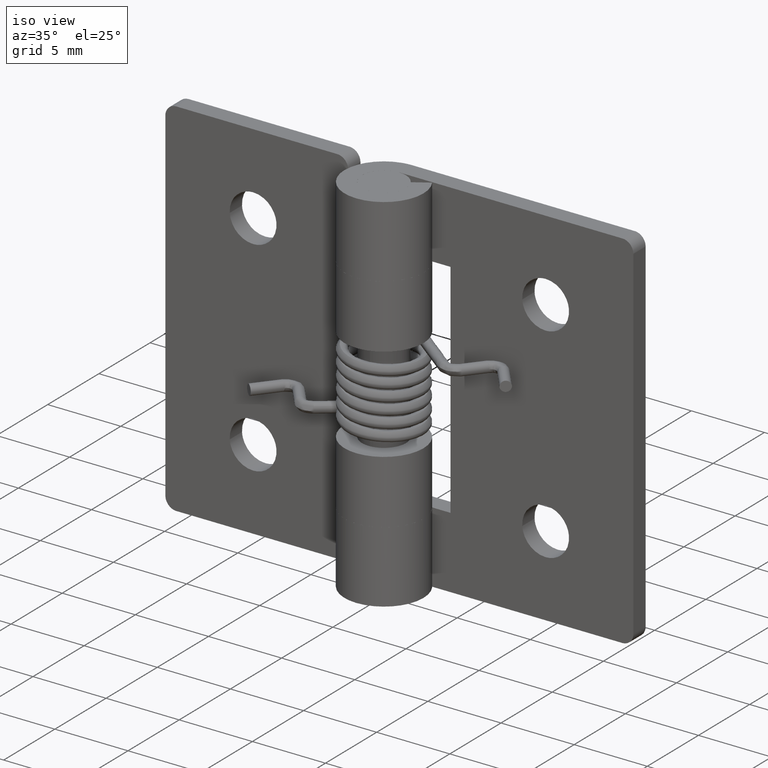
[diagram: clean part render]
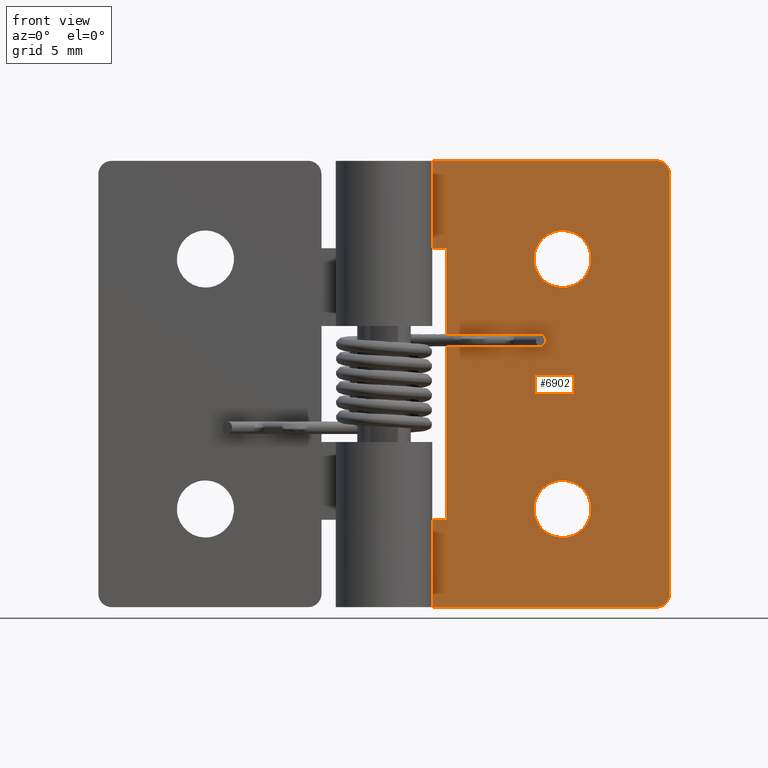
[diagram: tour spotlight — one face highlighted and labeled with its STEP entity id]
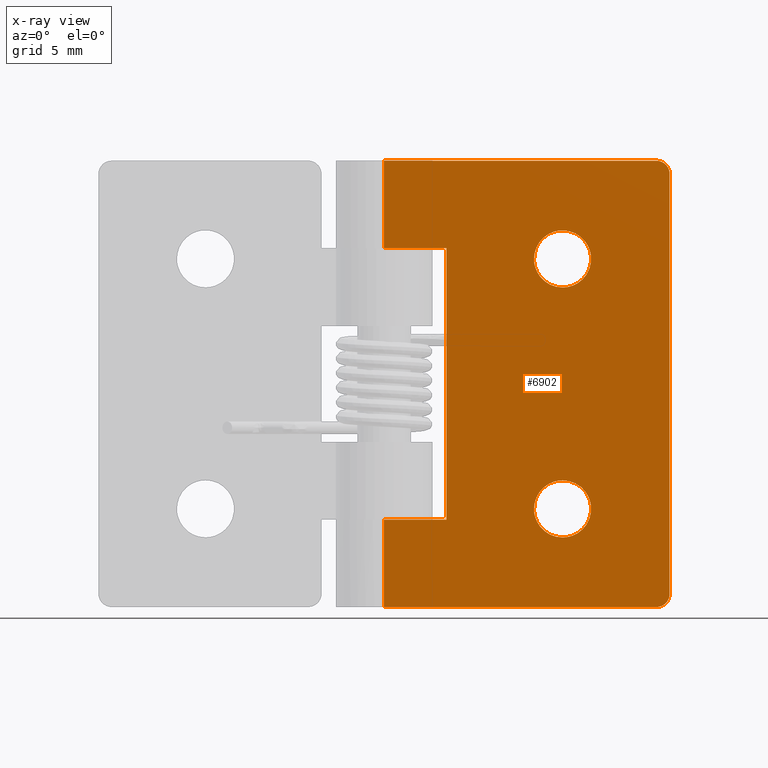
[diagram: x-ray of the same camera — body ghosted, this tour face saturated]
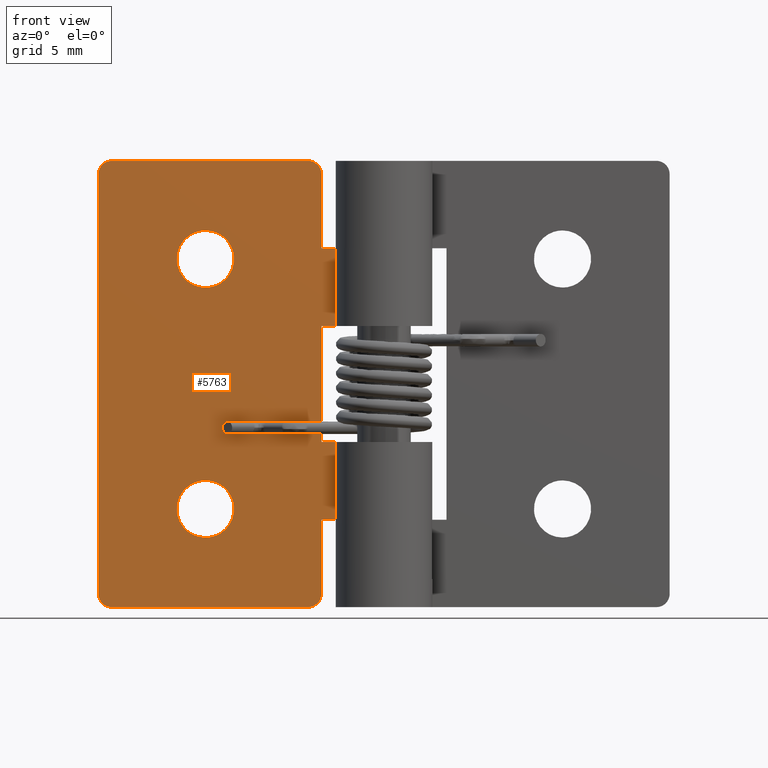
[diagram: tour spotlight — one face highlighted and labeled with its STEP entity id]
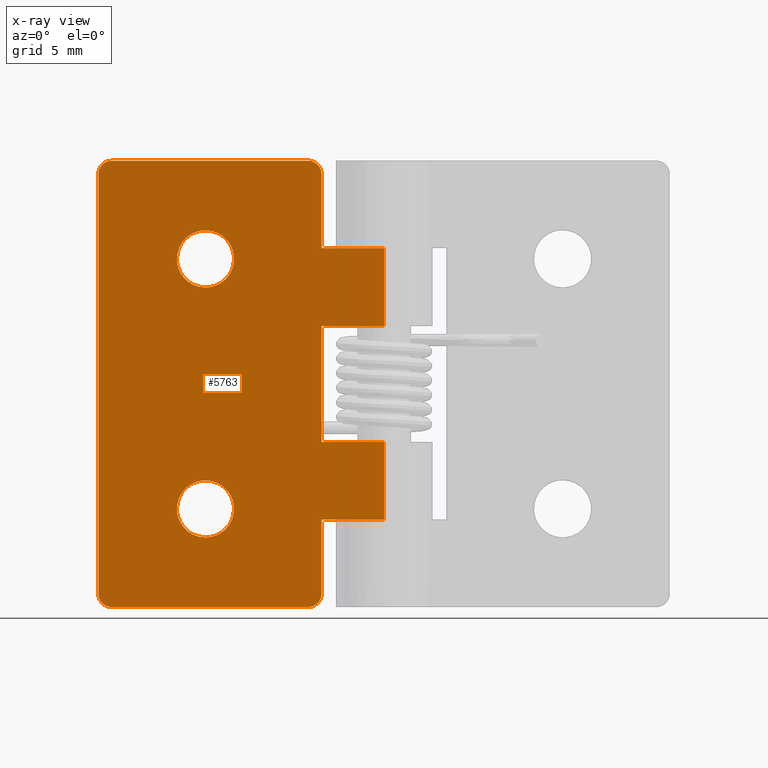
[diagram: x-ray of the same camera — body ghosted, this tour face saturated]
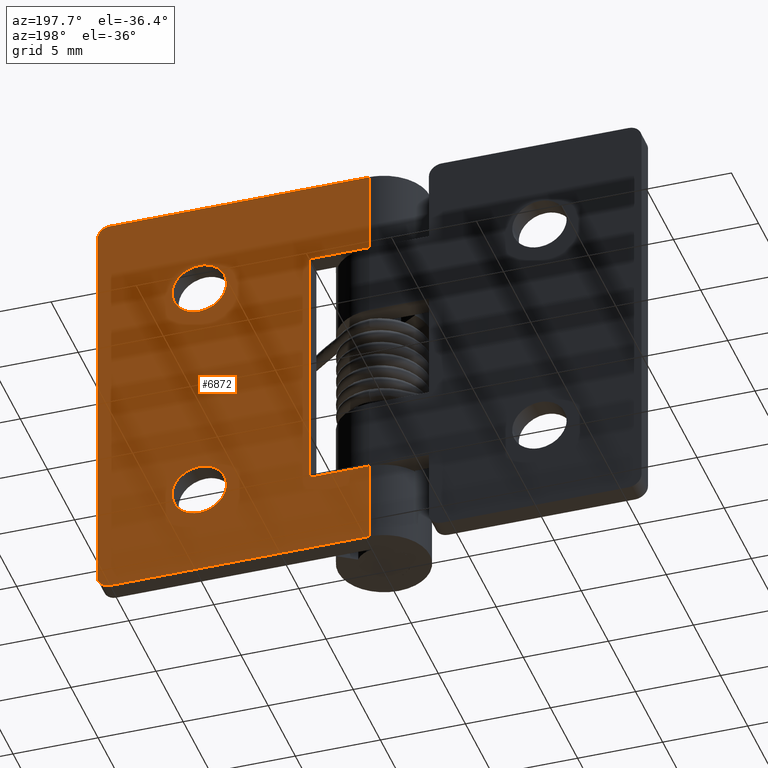
[diagram: tour spotlight — one face highlighted and labeled with its STEP entity id]
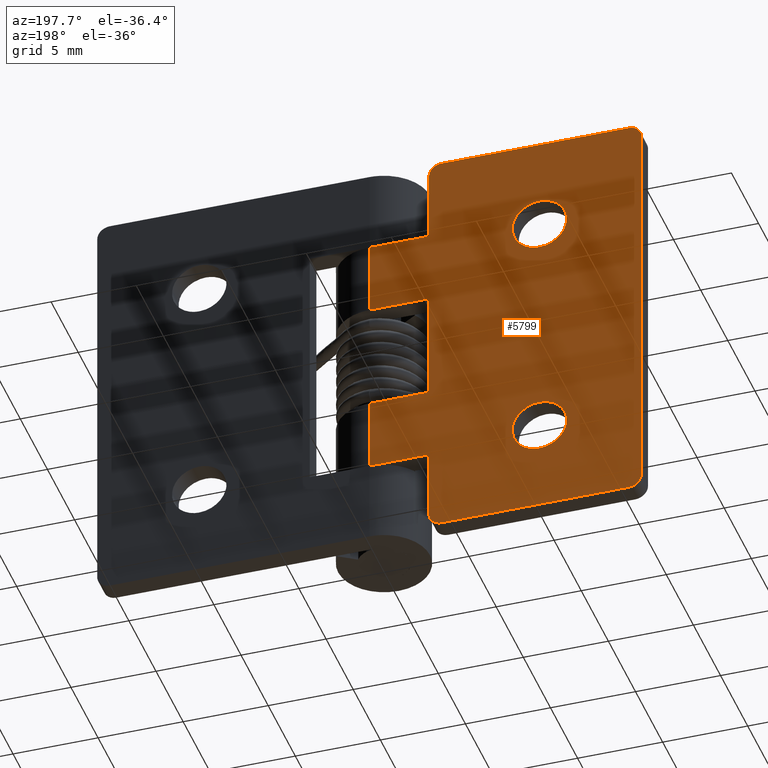
[diagram: tour spotlight — one face highlighted and labeled with its STEP entity id]
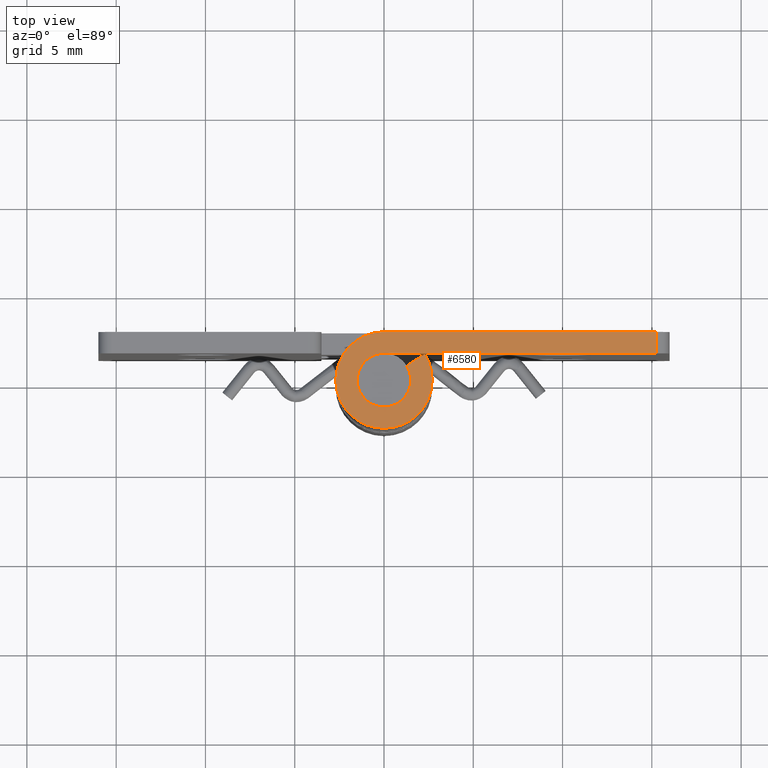
[diagram: tour spotlight — one face highlighted and labeled with its STEP entity id]
A machine part: a face-by-face anatomy tour. The part has 82 B-rep faces; the first image is the clean iso view, then the 5 largest visible faces are spotlighted one at a time (largest first), each with its STEP entity span.

Face 1 — front view, entity #6902. An x-ray twin of the same camera follows (body ghosted, this face saturated) — the face is partly hidden behind the body. In plain terms, the highlighted face is a freeform B-spline surface patch.
Definition (entity closure, byte-faithful):
#5897=CARTESIAN_POINT('',(8.402977322528450,1.500000000000000,5.402322336688243));
#5898=VERTEX_POINT('',#5897);
#5904=CARTESIAN_POINT('',(9.999993000000000,1.500000000000000,3.900000000000200));
#5905=VERTEX_POINT('',#5904);
#5906=CARTESIAN_POINT('',(9.999993000000000,1.500000000000000,3.900000000000200));
#5907=CARTESIAN_POINT('',(8.494863293056989,1.500000000000000,3.900000000000199));
#5908=CARTESIAN_POINT('',(8.402977322528450,1.500000000000000,5.402322336688244));
#5916=(BOUNDED_CURVE()B_SPLINE_CURVE(2,(#5906,#5907,#5908),.UNSPECIFIED.,.F.,.U.)B_SPLINE_CURVE_WITH_KNOTS((3,3),(0.500000000000000,0.739332962229828),.UNSPECIFIED.)CURVE()GEOMETRIC_REPRESENTATION_ITEM()RATIONAL_B_SPLINE_CURVE((1.0,0.719603993297389,0.976072041647183))REPRESENTATION_ITEM(''));
#5917=EDGE_CURVE('',#5905,#5898,#5916,.T.);
#5919=CARTESIAN_POINT('',(11.588808242181070,1.500000000000000,5.688854775457712));
#5920=VERTEX_POINT('',#5919);
#5921=CARTESIAN_POINT('',(11.588808242181075,1.500000000000000,5.688854775457712));
#5922=CARTESIAN_POINT('',(11.599992999999996,1.500000000000000,5.594758591450026));
#5923=CARTESIAN_POINT('',(11.599993000000000,1.500000000000000,5.500000000000200));
#5924=CARTESIAN_POINT('',(11.599993000000001,1.500000000000000,3.900000000000200));
#5925=CARTESIAN_POINT('',(9.999993000000000,1.500000000000000,3.900000000000200));
#5933=(BOUNDED_CURVE()B_SPLINE_CURVE(2,(#5921,#5922,#5923,#5924,#5925),.UNSPECIFIED.,.F.,.U.)B_SPLINE_CURVE_WITH_KNOTS((3,2,3),(0.229562473514219,0.250000000000000,0.500000000000000),.UNSPECIFIED.)CURVE()GEOMETRIC_REPRESENTATION_ITEM()RATIONAL_B_SPLINE_CURVE((0.956026754185093,0.976055948331978,1.0,0.707106781186548,1.0))REPRESENTATION_ITEM(''));
#5934=EDGE_CURVE('',#5920,#5905,#5933,.T.);
#5978=CARTESIAN_POINT('',(9.999993000000000,1.500000000000000,7.100000000000200));
#5979=VERTEX_POINT('',#5978);
#5980=CARTESIAN_POINT('',(9.999993000000000,1.500000000000000,7.100000000000200));
#5981=CARTESIAN_POINT('',(11.421072241510121,1.500000000000000,7.100000000000199));
#5982=CARTESIAN_POINT('',(11.588808242181074,1.500000000000000,5.688854775457712));
#5990=(BOUNDED_CURVE()B_SPLINE_CURVE(2,(#5980,#5981,#5982),.UNSPECIFIED.,.F.,.U.)B_SPLINE_CURVE_WITH_KNOTS((3,3),(0.0,0.229562473514219),.UNSPECIFIED.)CURVE()GEOMETRIC_REPRESENTATION_ITEM()RATIONAL_B_SPLINE_CURVE((1.0,0.731050832854570,0.956026754185093))REPRESENTATION_ITEM(''));
#5991=EDGE_CURVE('',#5979,#5920,#5990,.T.);
#5993=CARTESIAN_POINT('',(8.402977322528450,1.500000000000000,5.402322336688243));
#5994=CARTESIAN_POINT('',(8.399992999999999,1.500000000000000,5.451115578666115));
#5995=CARTESIAN_POINT('',(8.399993000000000,1.500000000000000,5.500000000000200));
#5996=CARTESIAN_POINT('',(8.399993000000002,1.500000000000000,7.100000000000200));
#5997=CARTESIAN_POINT('',(9.999993000000000,1.500000000000000,7.100000000000200));
#6005=(BOUNDED_CURVE()B_SPLINE_CURVE(2,(#5993,#5994,#5995,#5996,#5997),.UNSPECIFIED.,.F.,.U.)B_SPLINE_CURVE_WITH_KNOTS((3,2,3),(0.739332962229827,0.750000000000000,1.0),.UNSPECIFIED.)CURVE()GEOMETRIC_REPRESENTATION_ITEM()RATIONAL_B_SPLINE_CURVE((0.976072041647182,0.987502787889158,1.0,0.707106781186548,1.0))REPRESENTATION_ITEM(''));
#6006=EDGE_CURVE('',#5898,#5979,#6005,.T.);
#6083=CARTESIAN_POINT('',(8.402977322528450,1.500000000000000,19.402314336688249));
#6084=VERTEX_POINT('',#6083);
#6090=CARTESIAN_POINT('',(9.999993000000000,1.500000000000000,17.899992000000200));
#6091=VERTEX_POINT('',#6090);
#6092=CARTESIAN_POINT('',(9.999993000000000,1.500000000000000,17.899992000000200));
#6093=CARTESIAN_POINT('',(8.494863293056989,1.500000000000000,17.899992000000196));
#6094=CARTESIAN_POINT('',(8.402977322528450,1.500000000000000,19.402314336688249));
#6102=(BOUNDED_CURVE()B_SPLINE_CURVE(2,(#6092,#6093,#6094),.UNSPECIFIED.,.F.,.U.)B_SPLINE_CURVE_WITH_KNOTS((3,3),(0.500000000000000,0.739332962229828),.UNSPECIFIED.)CURVE()GEOMETRIC_REPRESENTATION_ITEM()RATIONAL_B_SPLINE_CURVE((1.0,0.719603993297389,0.976072041647183))REPRESENTATION_ITEM(''));
#6103=EDGE_CURVE('',#6091,#6084,#6102,.T.);
#6105=CARTESIAN_POINT('',(11.588808242181070,1.500000000000000,19.688846775457709));
#6106=VERTEX_POINT('',#6105);
#6107=CARTESIAN_POINT('',(11.588808242181075,1.500000000000000,19.688846775457712));
#6108=CARTESIAN_POINT('',(11.599993000000000,1.500000000000000,19.594750591450030));
#6109=CARTESIAN_POINT('',(11.599993000000000,1.500000000000000,19.499992000000201));
#6110=CARTESIAN_POINT('',(11.599993000000001,1.500000000000000,17.899992000000196));
#6111=CARTESIAN_POINT('',(9.999993000000000,1.500000000000000,17.899992000000200));
#6119=(BOUNDED_CURVE()B_SPLINE_CURVE(2,(#6107,#6108,#6109,#6110,#6111),.UNSPECIFIED.,.F.,.U.)B_SPLINE_CURVE_WITH_KNOTS((3,2,3),(0.229562473514219,0.250000000000000,0.500000000000000),.UNSPECIFIED.)CURVE()GEOMETRIC_REPRESENTATION_ITEM()RATIONAL_B_SPLINE_CURVE((0.956026754185093,0.976055948331978,1.0,0.707106781186548,1.0))REPRESENTATION_ITEM(''));
#6120=EDGE_CURVE('',#6106,#6091,#6119,.T.);
#6164=CARTESIAN_POINT('',(9.999993000000000,1.500000000000000,21.099992000000199));
#6165=VERTEX_POINT('',#6164);
#6166=CARTESIAN_POINT('',(9.999993000000000,1.500000000000000,21.099992000000199));
#6167=CARTESIAN_POINT('',(11.421072241510124,1.500000000000000,21.099992000000203));
#6168=CARTESIAN_POINT('',(11.588808242181068,1.500000000000000,19.688846775457712));
#6176=(BOUNDED_CURVE()B_SPLINE_CURVE(2,(#6166,#6167,#6168),.UNSPECIFIED.,.F.,.U.)B_SPLINE_CURVE_WITH_KNOTS((3,3),(0.0,0.229562473514219),.UNSPECIFIED.)CURVE()GEOMETRIC_REPRESENTATION_ITEM()RATIONAL_B_SPLINE_CURVE((1.0,0.731050832854569,0.956026754185093))REPRESENTATION_ITEM(''));
#6177=EDGE_CURVE('',#6165,#6106,#6176,.T.);
#6179=CARTESIAN_POINT('',(8.402977322528450,1.500000000000000,19.402314336688246));
#6180=CARTESIAN_POINT('',(8.399993000000000,1.500000000000001,19.451107578666115));
#6181=CARTESIAN_POINT('',(8.399993000000000,1.500000000000000,19.499992000000201));
#6182=CARTESIAN_POINT('',(8.399993000000002,1.500000000000000,21.099992000000206));
#6183=CARTESIAN_POINT('',(9.999993000000000,1.500000000000000,21.099992000000199));
#6191=(BOUNDED_CURVE()B_SPLINE_CURVE(2,(#6179,#6180,#6181,#6182,#6183),.UNSPECIFIED.,.F.,.U.)B_SPLINE_CURVE_WITH_KNOTS((3,2,3),(0.739332962229828,0.750000000000000,1.0),.UNSPECIFIED.)CURVE()GEOMETRIC_REPRESENTATION_ITEM()RATIONAL_B_SPLINE_CURVE((0.976072041647182,0.987502787889158,1.0,0.707106781186548,1.0))REPRESENTATION_ITEM(''));
#6192=EDGE_CURVE('',#6084,#6165,#6191,.T.);
#6227=CARTESIAN_POINT('',(15.999992000000001,1.500000000000055,24.249984999999999));
#6228=VERTEX_POINT('',#6227);
#6229=CARTESIAN_POINT('',(15.249992000000001,1.500000000000055,24.999984999999999));
#6230=VERTEX_POINT('',#6229);
#6231=CARTESIAN_POINT('',(15.999992000000001,1.500000000000055,24.249984999999999));
#6232=CARTESIAN_POINT('',(15.999991999999999,1.500000000000055,24.999984999999995));
#6233=CARTESIAN_POINT('',(15.249992000000001,1.500000000000055,24.999984999999999));
#6241=(BOUNDED_CURVE()B_SPLINE_CURVE(2,(#6231,#6232,#6233),.UNSPECIFIED.,.F.,.U.)CURVE()GEOMETRIC_REPRESENTATION_ITEM()QUASI_UNIFORM_CURVE()RATIONAL_B_SPLINE_CURVE((1.0,0.707106781186548,1.0))REPRESENTATION_ITEM(''));
#6242=EDGE_CURVE('',#6228,#6230,#6241,.T.);
#6288=CARTESIAN_POINT('',(15.249992000000001,1.500000000000000,0.0));
#6289=VERTEX_POINT('',#6288);
#6290=CARTESIAN_POINT('',(15.999992000000001,1.500000000000055,0.750000000000000));
#6291=VERTEX_POINT('',#6290);
#6292=CARTESIAN_POINT('',(15.249992000000001,1.500000000000000,0.0));
#6293=CARTESIAN_POINT('',(15.999991999999999,1.500000000000055,0.0));
#6294=CARTESIAN_POINT('',(15.999992000000001,1.500000000000055,0.750000000000000));
#6302=(BOUNDED_CURVE()B_SPLINE_CURVE(2,(#6292,#6293,#6294),.UNSPECIFIED.,.F.,.U.)CURVE()GEOMETRIC_REPRESENTATION_ITEM()QUASI_UNIFORM_CURVE()RATIONAL_B_SPLINE_CURVE((1.0,0.707106781186548,1.0))REPRESENTATION_ITEM(''));
#6303=EDGE_CURVE('',#6289,#6291,#6302,.T.);
#6342=CARTESIAN_POINT('',(3.500000000000000,1.499999999999946,20.099997999999999));
#6343=VERTEX_POINT('',#6342);
#6356=CARTESIAN_POINT('',(3.500000000000000,1.499999999999946,4.899994000000000));
#6357=VERTEX_POINT('',#6356);
#6363=CARTESIAN_POINT('',(3.500000000000000,1.499999999999946,20.099997999999999));
#6364=CARTESIAN_POINT('',(3.500000000000000,1.499999999999946,4.899994000000000));
#6365=QUASI_UNIFORM_CURVE('',1,(#6363,#6364),.UNSPECIFIED.,.F.,.U.);
#6366=EDGE_CURVE('',#6343,#6357,#6365,.T.);
#6412=CARTESIAN_POINT('',(0.0,1.500000000000000,4.899994000000000));
#6413=VERTEX_POINT('',#6412);
#6433=CARTESIAN_POINT('',(3.500000000000000,1.499999999999946,4.899994000000000));
#6434=CARTESIAN_POINT('',(0.0,1.500000000000000,4.899994000000000));
#6435=QUASI_UNIFORM_CURVE('',1,(#6433,#6434),.UNSPECIFIED.,.F.,.U.);
#6436=EDGE_CURVE('',#6357,#6413,#6435,.T.);
#6448=CARTESIAN_POINT('',(0.0,1.500000000000000,20.099997999999950));
#6449=VERTEX_POINT('',#6448);
#6503=CARTESIAN_POINT('',(0.0,1.500000000000000,20.099997999999950));
#6504=CARTESIAN_POINT('',(3.500000000000000,1.499999999999946,20.099997999999999));
#6505=QUASI_UNIFORM_CURVE('',1,(#6503,#6504),.UNSPECIFIED.,.F.,.U.);
#6506=EDGE_CURVE('',#6449,#6343,#6505,.T.);
#6516=CARTESIAN_POINT('',(0.0,1.500000000000000,24.999984999999999));
#6517=VERTEX_POINT('',#6516);
#6518=CARTESIAN_POINT('',(0.0,1.500000000000000,24.999984999999999));
#6519=CARTESIAN_POINT('',(15.249992000000001,1.500000000000055,24.999984999999999));
#6520=QUASI_UNIFORM_CURVE('',1,(#6518,#6519),.UNSPECIFIED.,.F.,.U.);
#6521=EDGE_CURVE('',#6517,#6230,#6520,.T.);
#6587=CARTESIAN_POINT('',(0.0,1.500000000000000,0.0));
#6588=VERTEX_POINT('',#6587);
#6589=CARTESIAN_POINT('',(0.0,1.500000000000000,0.0));
#6590=CARTESIAN_POINT('',(15.249992000000001,1.500000000000000,0.0));
#6591=QUASI_UNIFORM_CURVE('',1,(#6589,#6590),.UNSPECIFIED.,.F.,.U.);
#6592=EDGE_CURVE('',#6588,#6289,#6591,.T.);
#6779=CARTESIAN_POINT('',(0.0,1.500000000000000,0.0));
#6780=CARTESIAN_POINT('',(0.0,1.500000000000000,4.899994000000000));
#6781=QUASI_UNIFORM_CURVE('',1,(#6779,#6780),.UNSPECIFIED.,.F.,.U.);
#6782=EDGE_CURVE('',#6588,#6413,#6781,.T.);
#6814=CARTESIAN_POINT('',(0.0,1.500000000000000,20.099997999999950));
#6815=CARTESIAN_POINT('',(0.0,1.500000000000000,24.999984999999999));
#6816=QUASI_UNIFORM_CURVE('',1,(#6814,#6815),.UNSPECIFIED.,.F.,.U.);
#6817=EDGE_CURVE('',#6449,#6517,#6816,.T.);
#6834=CARTESIAN_POINT('',(15.999992000000001,1.500000000000055,0.750000000000000));
#6835=CARTESIAN_POINT('',(15.999992000000001,1.500000000000055,24.249984999999999));
#6836=QUASI_UNIFORM_CURVE('',1,(#6834,#6835),.UNSPECIFIED.,.F.,.U.);
#6837=EDGE_CURVE('',#6291,#6228,#6836,.T.);
#6873=CARTESIAN_POINT('',(-0.799199569388909,1.500000000000000,26.248733967613209));
#6874=CARTESIAN_POINT('',(-0.799199569388909,1.500000000000000,-1.248749861682338));
#6875=CARTESIAN_POINT('',(16.799191998542138,1.500000000000000,26.248733967613209));
#6876=CARTESIAN_POINT('',(16.799191998542138,1.500000000000000,-1.248749861682338));
#6877=B_SPLINE_SURFACE_WITH_KNOTS('',1,1,((#6873,#6875),(#6874,#6876)),.UNSPECIFIED.,.F.,.F.,.U.,(2,2),(2,2),(0.0,27.497483829295540),(0.0,17.598391567931049),.UNSPECIFIED.);
#6878=ORIENTED_EDGE('',*,*,#6837,.T.);
#6879=ORIENTED_EDGE('',*,*,#6242,.T.);
#6880=ORIENTED_EDGE('',*,*,#6521,.F.);
#6881=ORIENTED_EDGE('',*,*,#6817,.F.);
#6882=ORIENTED_EDGE('',*,*,#6506,.T.);
#6883=ORIENTED_EDGE('',*,*,#6366,.T.);
#6884=ORIENTED_EDGE('',*,*,#6436,.T.);
#6885=ORIENTED_EDGE('',*,*,#6782,.F.);
#6886=ORIENTED_EDGE('',*,*,#6592,.T.);
#6887=ORIENTED_EDGE('',*,*,#6303,.T.);
#6888=EDGE_LOOP('',(#6878,#6879,#6880,#6881,#6882,#6883,#6884,#6885,#6886,#6887));
#6889=FACE_OUTER_BOUND('',#6888,.T.);
#6890=ORIENTED_EDGE('',*,*,#6103,.T.);
#6891=ORIENTED_EDGE('',*,*,#6192,.T.);
#6892=ORIENTED_EDGE('',*,*,#6177,.T.);
#6893=ORIENTED_EDGE('',*,*,#6120,.T.);
#6894=EDGE_LOOP('',(#6890,#6891,#6892,#6893));
#6895=FACE_BOUND('',#6894,.T.);
#6896=ORIENTED_EDGE('',*,*,#5917,.T.);
#6897=ORIENTED_EDGE('',*,*,#6006,.T.);
#6898=ORIENTED_EDGE('',*,*,#5991,.T.);
#6899=ORIENTED_EDGE('',*,*,#5934,.T.);
#6900=EDGE_LOOP('',(#6896,#6897,#6898,#6899));
#6901=FACE_BOUND('',#6900,.T.);
#6902=ADVANCED_FACE('',(#6889,#6895,#6901),#6877,.T.);

Face 2 — front view, entity #5763. An x-ray twin of the same camera follows (body ghosted, this face saturated) — the face is partly hidden behind the body. In plain terms, the highlighted face is a freeform B-spline surface patch.
Definition (entity closure, byte-faithful):
#4530=CARTESIAN_POINT('',(-8.411191757818829,1.500000000000000,5.688854775457712));
#4531=VERTEX_POINT('',#4530);
#4532=CARTESIAN_POINT('',(-10.000006999999901,1.500000000000000,3.900000000000200));
#4533=VERTEX_POINT('',#4532);
#4534=CARTESIAN_POINT('',(-8.411191757818829,1.500000000000000,5.688854775457712));
#4535=CARTESIAN_POINT('',(-8.400006999999899,1.500000000000000,5.594758591450025));
#4536=CARTESIAN_POINT('',(-8.400006999999899,1.500000000000000,5.500000000000200));
#4537=CARTESIAN_POINT('',(-8.400006999999901,1.500000000000000,3.900000000000200));
#4538=CARTESIAN_POINT('',(-10.000006999999901,1.500000000000000,3.900000000000200));
#4546=(BOUNDED_CURVE()B_SPLINE_CURVE(2,(#4534,#4535,#4536,#4537,#4538),.UNSPECIFIED.,.F.,.U.)B_SPLINE_CURVE_WITH_KNOTS((3,2,3),(0.229562473514219,0.250000000000000,0.500000000000000),.UNSPECIFIED.)CURVE()GEOMETRIC_REPRESENTATION_ITEM()RATIONAL_B_SPLINE_CURVE((0.956026754185093,0.976055948331978,1.0,0.707106781186548,1.0))REPRESENTATION_ITEM(''));
#4547=EDGE_CURVE('',#4531,#4533,#4546,.T.);
#4588=CARTESIAN_POINT('',(-11.597022677471450,1.500000000000000,5.402322336688243));
#4589=VERTEX_POINT('',#4588);
#4595=CARTESIAN_POINT('',(-10.000006999999901,1.500000000000000,3.900000000000200));
#4596=CARTESIAN_POINT('',(-11.505136706942912,1.500000000000000,3.900000000000199));
#4597=CARTESIAN_POINT('',(-11.597022677471456,1.500000000000000,5.402322336688244));
#4605=(BOUNDED_CURVE()B_SPLINE_CURVE(2,(#4595,#4596,#4597),.UNSPECIFIED.,.F.,.U.)B_SPLINE_CURVE_WITH_KNOTS((3,3),(0.500000000000000,0.739332962229828),.UNSPECIFIED.)CURVE()GEOMETRIC_REPRESENTATION_ITEM()RATIONAL_B_SPLINE_CURVE((1.0,0.719603993297389,0.976072041647183))REPRESENTATION_ITEM(''));
#4606=EDGE_CURVE('',#4533,#4589,#4605,.T.);
#4629=CARTESIAN_POINT('',(-10.000006999999901,1.500000000000000,7.100000000000200));
#4630=VERTEX_POINT('',#4629);
#4631=CARTESIAN_POINT('',(-10.000006999999901,1.500000000000000,7.100000000000200));
#4632=CARTESIAN_POINT('',(-8.578927758489780,1.500000000000001,7.100000000000200));
#4633=CARTESIAN_POINT('',(-8.411191757818829,1.500000000000000,5.688854775457712));
#4641=(BOUNDED_CURVE()B_SPLINE_CURVE(2,(#4631,#4632,#4633),.UNSPECIFIED.,.F.,.U.)B_SPLINE_CURVE_WITH_KNOTS((3,3),(0.0,0.229562473514219),.UNSPECIFIED.)CURVE()GEOMETRIC_REPRESENTATION_ITEM()RATIONAL_B_SPLINE_CURVE((1.0,0.731050832854570,0.956026754185093))REPRESENTATION_ITEM(''));
#4642=EDGE_CURVE('',#4630,#4531,#4641,.T.);
#4644=CARTESIAN_POINT('',(-11.597022677471456,1.500000000000000,5.402322336688243));
#4645=CARTESIAN_POINT('',(-11.600006999999900,1.500000000000000,5.451115578666115));
#4646=CARTESIAN_POINT('',(-11.600006999999900,1.500000000000000,5.500000000000200));
#4647=CARTESIAN_POINT('',(-11.600006999999898,1.500000000000000,7.100000000000200));
#4648=CARTESIAN_POINT('',(-10.000006999999901,1.500000000000000,7.100000000000200));
#4656=(BOUNDED_CURVE()B_SPLINE_CURVE(2,(#4644,#4645,#4646,#4647,#4648),.UNSPECIFIED.,.F.,.U.)B_SPLINE_CURVE_WITH_KNOTS((3,2,3),(0.739332962229827,0.750000000000000,1.0),.UNSPECIFIED.)CURVE()GEOMETRIC_REPRESENTATION_ITEM()RATIONAL_B_SPLINE_CURVE((0.976072041647182,0.987502787889158,1.0,0.707106781186548,1.0))REPRESENTATION_ITEM(''));
#4657=EDGE_CURVE('',#4589,#4630,#4656,.T.);
#4716=CARTESIAN_POINT('',(-8.411191757818829,1.500000000000000,19.688846775457709));
#4717=VERTEX_POINT('',#4716);
#4718=CARTESIAN_POINT('',(-10.000006999999901,1.500000000000000,17.899992000000200));
#4719=VERTEX_POINT('',#4718);
#4720=CARTESIAN_POINT('',(-8.411191757818829,1.500000000000000,19.688846775457705));
#4721=CARTESIAN_POINT('',(-8.400006999999899,1.500000000000000,19.594750591450016));
#4722=CARTESIAN_POINT('',(-8.400006999999899,1.500000000000000,19.499992000000201));
#4723=CARTESIAN_POINT('',(-8.400006999999901,1.500000000000000,17.899992000000196));
#4724=CARTESIAN_POINT('',(-10.000006999999901,1.500000000000000,17.899992000000200));
#4732=(BOUNDED_CURVE()B_SPLINE_CURVE(2,(#4720,#4721,#4722,#4723,#4724),.UNSPECIFIED.,.F.,.U.)B_SPLINE_CURVE_WITH_KNOTS((3,2,3),(0.229562473514220,0.250000000000000,0.500000000000000),.UNSPECIFIED.)CURVE()GEOMETRIC_REPRESENTATION_ITEM()RATIONAL_B_SPLINE_CURVE((0.956026754185094,0.976055948331979,1.0,0.707106781186548,1.0))REPRESENTATION_ITEM(''));
#4733=EDGE_CURVE('',#4717,#4719,#4732,.T.);
#4774=CARTESIAN_POINT('',(-11.597022677471450,1.500000000000000,19.402314336688249));
#4775=VERTEX_POINT('',#4774);
#4781=CARTESIAN_POINT('',(-10.000006999999901,1.500000000000000,17.899992000000200));
#4782=CARTESIAN_POINT('',(-11.505136706942912,1.500000000000000,17.899992000000196));
#4783=CARTESIAN_POINT('',(-11.597022677471456,1.500000000000000,19.402314336688249));
#4791=(BOUNDED_CURVE()B_SPLINE_CURVE(2,(#4781,#4782,#4783),.UNSPECIFIED.,.F.,.U.)B_SPLINE_CURVE_WITH_KNOTS((3,3),(0.500000000000000,0.739332962229828),.UNSPECIFIED.)CURVE()GEOMETRIC_REPRESENTATION_ITEM()RATIONAL_B_SPLINE_CURVE((1.0,0.719603993297389,0.976072041647183))REPRESENTATION_ITEM(''));
#4792=EDGE_CURVE('',#4719,#4775,#4791,.T.);
#4815=CARTESIAN_POINT('',(-10.000006999999901,1.500000000000000,21.099992000000199));
#4816=VERTEX_POINT('',#4815);
#4817=CARTESIAN_POINT('',(-10.000006999999901,1.500000000000000,21.099992000000199));
#4818=CARTESIAN_POINT('',(-8.578927758489773,1.500000000000000,21.099992000000206));
#4819=CARTESIAN_POINT('',(-8.411191757818829,1.500000000000000,19.688846775457701));
#4827=(BOUNDED_CURVE()B_SPLINE_CURVE(2,(#4817,#4818,#4819),.UNSPECIFIED.,.F.,.U.)B_SPLINE_CURVE_WITH_KNOTS((3,3),(0.0,0.229562473514220),.UNSPECIFIED.)CURVE()GEOMETRIC_REPRESENTATION_ITEM()RATIONAL_B_SPLINE_CURVE((1.0,0.731050832854569,0.956026754185094))REPRESENTATION_ITEM(''));
#4828=EDGE_CURVE('',#4816,#4717,#4827,.T.);
#4830=CARTESIAN_POINT('',(-11.597022677471447,1.500000000000000,19.402314336688253));
#4831=CARTESIAN_POINT('',(-11.600006999999897,1.500000000000000,19.451107578666122));
#4832=CARTESIAN_POINT('',(-11.600006999999900,1.500000000000000,19.499992000000201));
#4833=CARTESIAN_POINT('',(-11.600006999999898,1.500000000000000,21.099992000000206));
#4834=CARTESIAN_POINT('',(-10.000006999999901,1.500000000000000,21.099992000000199));
#4842=(BOUNDED_CURVE()B_SPLINE_CURVE(2,(#4830,#4831,#4832,#4833,#4834),.UNSPECIFIED.,.F.,.U.)B_SPLINE_CURVE_WITH_KNOTS((3,2,3),(0.739332962229828,0.750000000000000,1.0),.UNSPECIFIED.)CURVE()GEOMETRIC_REPRESENTATION_ITEM()RATIONAL_B_SPLINE_CURVE((0.976072041647182,0.987502787889158,1.0,0.707106781186548,1.0))REPRESENTATION_ITEM(''));
#4843=EDGE_CURVE('',#4775,#4816,#4842,.T.);
#4894=CARTESIAN_POINT('',(-3.500000000000000,1.500000000000000,24.249984999999999));
#4895=VERTEX_POINT('',#4894);
#4896=CARTESIAN_POINT('',(-4.250000000000000,1.500000000000055,24.999984999999999));
#4897=VERTEX_POINT('',#4896);
#4898=CARTESIAN_POINT('',(-3.500000000000000,1.500000000000000,24.249984999999999));
#4899=CARTESIAN_POINT('',(-3.499999999999999,1.500000000000055,24.999984999999995));
#4900=CARTESIAN_POINT('',(-4.250000000000000,1.500000000000055,24.999984999999999));
#4908=(BOUNDED_CURVE()B_SPLINE_CURVE(2,(#4898,#4899,#4900),.UNSPECIFIED.,.F.,.U.)CURVE()GEOMETRIC_REPRESENTATION_ITEM()QUASI_UNIFORM_CURVE()RATIONAL_B_SPLINE_CURVE((1.0,0.707106781186548,1.0))REPRESENTATION_ITEM(''));
#4909=EDGE_CURVE('',#4895,#4897,#4908,.T.);
#4955=CARTESIAN_POINT('',(-4.250000000000000,1.500000000000055,0.0));
#4956=VERTEX_POINT('',#4955);
#4957=CARTESIAN_POINT('',(-3.500000000000000,1.500000000000055,0.750000000000000));
#4958=VERTEX_POINT('',#4957);
#4959=CARTESIAN_POINT('',(-4.250000000000000,1.500000000000055,0.0));
#4960=CARTESIAN_POINT('',(-3.499999999999999,1.500000000000055,0.0));
#4961=CARTESIAN_POINT('',(-3.500000000000000,1.500000000000055,0.750000000000000));
#4969=(BOUNDED_CURVE()B_SPLINE_CURVE(2,(#4959,#4960,#4961),.UNSPECIFIED.,.F.,.U.)CURVE()GEOMETRIC_REPRESENTATION_ITEM()QUASI_UNIFORM_CURVE()RATIONAL_B_SPLINE_CURVE((1.0,0.707106781186548,1.0))REPRESENTATION_ITEM(''));
#4970=EDGE_CURVE('',#4956,#4958,#4969,.T.);
#5033=CARTESIAN_POINT('',(-16.000008000000101,1.499999999999946,24.249984999999999));
#5034=VERTEX_POINT('',#5033);
#5040=CARTESIAN_POINT('',(-15.250008000000101,1.500000000000000,24.999984999999999));
#5041=VERTEX_POINT('',#5040);
#5042=CARTESIAN_POINT('',(-15.250008000000101,1.499999999999946,24.999984999999999));
#5043=CARTESIAN_POINT('',(-16.000008000000097,1.499999999999946,24.999984999999995));
#5044=CARTESIAN_POINT('',(-16.000008000000101,1.499999999999946,24.249984999999999));
#5052=(BOUNDED_CURVE()B_SPLINE_CURVE(2,(#5042,#5043,#5044),.UNSPECIFIED.,.F.,.U.)CURVE()GEOMETRIC_REPRESENTATION_ITEM()QUASI_UNIFORM_CURVE()RATIONAL_B_SPLINE_CURVE((1.0,0.707106781186548,1.0))REPRESENTATION_ITEM(''));
#5053=EDGE_CURVE('',#5041,#5034,#5052,.T.);
#5094=CARTESIAN_POINT('',(-15.250008000000101,1.499999999999946,0.0));
#5095=VERTEX_POINT('',#5094);
#5101=CARTESIAN_POINT('',(-16.000008000000101,1.499999999999946,0.750000000000000));
#5102=VERTEX_POINT('',#5101);
#5103=CARTESIAN_POINT('',(-16.000008000000101,1.499999999999946,0.750000000000000));
#5104=CARTESIAN_POINT('',(-16.000008000000097,1.499999999999946,0.0));
#5105=CARTESIAN_POINT('',(-15.250008000000101,1.499999999999946,0.0));
#5113=(BOUNDED_CURVE()B_SPLINE_CURVE(2,(#5103,#5104,#5105),.UNSPECIFIED.,.F.,.U.)CURVE()GEOMETRIC_REPRESENTATION_ITEM()QUASI_UNIFORM_CURVE()RATIONAL_B_SPLINE_CURVE((1.0,0.707106781186548,1.0))REPRESENTATION_ITEM(''));
#5114=EDGE_CURVE('',#5102,#5095,#5113,.T.);
#5159=CARTESIAN_POINT('',(-3.500000000000000,1.500000000000000,9.249992000000001));
#5160=VERTEX_POINT('',#5159);
#5166=CARTESIAN_POINT('',(9.184352E-017,1.500000000000000,9.249992000000001));
#5167=VERTEX_POINT('',#5166);
#5168=CARTESIAN_POINT('',(-3.500000000000000,1.500000000000000,9.249992000000001));
#5169=CARTESIAN_POINT('',(9.184352E-017,1.500000000000000,9.249992000000001));
#5170=QUASI_UNIFORM_CURVE('',1,(#5168,#5169),.UNSPECIFIED.,.F.,.U.);
#5171=EDGE_CURVE('',#5160,#5167,#5170,.T.);
#5237=CARTESIAN_POINT('',(9.184352E-017,1.500000000000000,15.749992000000050));
#5238=VERTEX_POINT('',#5237);
#5258=CARTESIAN_POINT('',(-3.500000000000000,1.499999999999946,15.749992000000001));
#5259=VERTEX_POINT('',#5258);
#5260=CARTESIAN_POINT('',(9.184352E-017,1.500000000000000,15.749992000000050));
#5261=CARTESIAN_POINT('',(-3.500000000000000,1.499999999999946,15.749992000000001));
#5262=QUASI_UNIFORM_CURVE('',1,(#5260,#5261),.UNSPECIFIED.,.F.,.U.);
#5263=EDGE_CURVE('',#5238,#5259,#5262,.T.);
#5285=CARTESIAN_POINT('',(-3.500000000000000,1.499999999999946,15.749992000000001));
#5286=CARTESIAN_POINT('',(-3.500000000000000,1.500000000000000,9.249992000000001));
#5287=QUASI_UNIFORM_CURVE('',1,(#5285,#5286),.UNSPECIFIED.,.F.,.U.);
#5288=EDGE_CURVE('',#5259,#5160,#5287,.T.);
#5313=CARTESIAN_POINT('',(-3.500000000000000,1.499999999999946,20.099997999999999));
#5314=VERTEX_POINT('',#5313);
#5315=CARTESIAN_POINT('',(-3.500000000000000,1.499999999999946,20.099997999999999));
#5316=CARTESIAN_POINT('',(-3.500000000000000,1.500000000000000,24.249984999999999));
#5317=QUASI_UNIFORM_CURVE('',1,(#5315,#5316),.UNSPECIFIED.,.F.,.U.);
#5318=EDGE_CURVE('',#5314,#4895,#5317,.T.);
#5341=CARTESIAN_POINT('',(9.184352E-017,1.500000000000000,20.099997999999950));
#5342=VERTEX_POINT('',#5341);
#5343=CARTESIAN_POINT('',(9.184352E-017,1.500000000000000,20.099997999999950));
#5344=CARTESIAN_POINT('',(-3.500000000000000,1.499999999999946,20.099997999999999));
#5345=QUASI_UNIFORM_CURVE('',1,(#5343,#5344),.UNSPECIFIED.,.F.,.U.);
#5346=EDGE_CURVE('',#5342,#5314,#5345,.T.);
#5433=CARTESIAN_POINT('',(9.184352E-017,1.500000000000000,4.899994000000000));
#5434=VERTEX_POINT('',#5433);
#5454=CARTESIAN_POINT('',(-3.500000000000000,1.499999999999946,4.899994000000000));
#5455=VERTEX_POINT('',#5454);
#5456=CARTESIAN_POINT('',(-3.500000000000000,1.499999999999946,4.899994000000000));
#5457=CARTESIAN_POINT('',(9.184352E-017,1.500000000000000,4.899994000000000));
#5458=QUASI_UNIFORM_CURVE('',1,(#5456,#5457),.UNSPECIFIED.,.F.,.U.);
#5459=EDGE_CURVE('',#5455,#5434,#5458,.T.);
#5504=CARTESIAN_POINT('',(9.184352E-017,1.500000000000000,4.899994000000000));
#5505=CARTESIAN_POINT('',(9.184352E-017,1.500000000000000,9.249992000000001));
#5506=QUASI_UNIFORM_CURVE('',1,(#5504,#5505),.UNSPECIFIED.,.F.,.U.);
#5507=EDGE_CURVE('',#5434,#5167,#5506,.T.);
#5535=CARTESIAN_POINT('',(9.184352E-017,1.500000000000000,15.749992000000050));
#5536=CARTESIAN_POINT('',(9.184352E-017,1.500000000000000,20.099997999999950));
#5537=QUASI_UNIFORM_CURVE('',1,(#5535,#5536),.UNSPECIFIED.,.F.,.U.);
#5538=EDGE_CURVE('',#5238,#5342,#5537,.T.);
#5654=CARTESIAN_POINT('',(-4.250000000000000,1.500000000000055,0.0));
#5655=CARTESIAN_POINT('',(-15.250008000000101,1.499999999999946,0.0));
#5656=QUASI_UNIFORM_CURVE('',1,(#5654,#5655),.UNSPECIFIED.,.F.,.U.);
#5657=EDGE_CURVE('',#4956,#5095,#5656,.T.);
#5673=CARTESIAN_POINT('',(-4.250000000000000,1.500000000000055,24.999984999999999));
#5674=CARTESIAN_POINT('',(-15.250008000000101,1.500000000000000,24.999984999999999));
#5675=QUASI_UNIFORM_CURVE('',1,(#5673,#5674),.UNSPECIFIED.,.F.,.U.);
#5676=EDGE_CURVE('',#4897,#5041,#5675,.T.);
#5700=CARTESIAN_POINT('',(-16.000008000000101,1.499999999999946,0.750000000000000));
#5701=CARTESIAN_POINT('',(-16.000008000000101,1.499999999999946,24.249984999999999));
#5702=QUASI_UNIFORM_CURVE('',1,(#5700,#5701),.UNSPECIFIED.,.F.,.U.);
#5703=EDGE_CURVE('',#5102,#5034,#5702,.T.);
#5720=CARTESIAN_POINT('',(-3.500000000000000,1.500000000000055,0.750000000000000));
#5721=CARTESIAN_POINT('',(-3.500000000000000,1.499999999999946,4.899994000000000));
#5722=QUASI_UNIFORM_CURVE('',1,(#5720,#5721),.UNSPECIFIED.,.F.,.U.);
#5723=EDGE_CURVE('',#4958,#5455,#5722,.T.);
#5728=CARTESIAN_POINT('',(-16.799208068195728,1.500000000000000,-1.248749202295177));
#5729=CARTESIAN_POINT('',(-16.799208068195728,1.500000000000000,26.248734872847031));
#5730=CARTESIAN_POINT('',(0.799200783451724,1.500000000000000,-1.248749202295177));
#5731=CARTESIAN_POINT('',(0.799200783451724,1.500000000000000,26.248734872847031));
#5732=B_SPLINE_SURFACE_WITH_KNOTS('',1,1,((#5728,#5730),(#5729,#5731)),.UNSPECIFIED.,.F.,.F.,.U.,(2,2),(2,2),(0.0,27.497484075142200),(0.0,17.598408851647449),.UNSPECIFIED.);
#5733=ORIENTED_EDGE('',*,*,#4909,.T.);
#5734=ORIENTED_EDGE('',*,*,#5676,.T.);
#5735=ORIENTED_EDGE('',*,*,#5053,.T.);
#5736=ORIENTED_EDGE('',*,*,#5703,.F.);
#5737=ORIENTED_EDGE('',*,*,#5114,.T.);
#5738=ORIENTED_EDGE('',*,*,#5657,.F.);
#5739=ORIENTED_EDGE('',*,*,#4970,.T.);
#5740=ORIENTED_EDGE('',*,*,#5723,.T.);
#5741=ORIENTED_EDGE('',*,*,#5459,.T.);
#5742=ORIENTED_EDGE('',*,*,#5507,.T.);
#5743=ORIENTED_EDGE('',*,*,#5171,.F.);
#5744=ORIENTED_EDGE('',*,*,#5288,.F.);
#5745=ORIENTED_EDGE('',*,*,#5263,.F.);
#5746=ORIENTED_EDGE('',*,*,#5538,.T.);
#5747=ORIENTED_EDGE('',*,*,#5346,.T.);
#5748=ORIENTED_EDGE('',*,*,#5318,.T.);
#5749=EDGE_LOOP('',(#5733,#5734,#5735,#5736,#5737,#5738,#5739,#5740,#5741,#5742,#5743,#5744,#5745,#5746,#5747,#5748));
#5750=FACE_OUTER_BOUND('',#5749,.T.);
#5751=ORIENTED_EDGE('',*,*,#4792,.T.);
#5752=ORIENTED_EDGE('',*,*,#4843,.T.);
#5753=ORIENTED_EDGE('',*,*,#4828,.T.);
#5754=ORIENTED_EDGE('',*,*,#4733,.T.);
#5755=EDGE_LOOP('',(#5751,#5752,#5753,#5754));
#5756=FACE_BOUND('',#5755,.T.);
#5757=ORIENTED_EDGE('',*,*,#4606,.T.);
#5758=ORIENTED_EDGE('',*,*,#4657,.T.);
#5759=ORIENTED_EDGE('',*,*,#4642,.T.);
#5760=ORIENTED_EDGE('',*,*,#4547,.T.);
#5761=EDGE_LOOP('',(#5757,#5758,#5759,#5760));
#5762=FACE_BOUND('',#5761,.T.);
#5763=ADVANCED_FACE('',(#5750,#5756,#5762),#5732,.F.);

Face 3 — auxiliary view, entity #6872. In plain terms, the highlighted face is a freeform B-spline surface patch.
Definition (entity closure, byte-faithful):
#5863=CARTESIAN_POINT('',(11.588808242181070,2.700005000000000,5.688854775457712));
#5864=VERTEX_POINT('',#5863);
#5865=CARTESIAN_POINT('',(9.999993000000000,2.700005000000000,3.900000000000200));
#5866=VERTEX_POINT('',#5865);
#5867=CARTESIAN_POINT('',(11.588808242181074,2.700005000000000,5.688854775457712));
#5868=CARTESIAN_POINT('',(11.599993000000005,2.700005000000000,5.594758591450026));
#5869=CARTESIAN_POINT('',(11.599993000000000,2.700005000000000,5.500000000000200));
#5870=CARTESIAN_POINT('',(11.599993000000001,2.700005000000000,3.900000000000200));
#5871=CARTESIAN_POINT('',(9.999993000000000,2.700005000000000,3.900000000000200));
#5879=(BOUNDED_CURVE()B_SPLINE_CURVE(2,(#5867,#5868,#5869,#5870,#5871),.UNSPECIFIED.,.F.,.U.)B_SPLINE_CURVE_WITH_KNOTS((3,2,3),(0.229562473514219,0.250000000000000,0.500000000000000),.UNSPECIFIED.)CURVE()GEOMETRIC_REPRESENTATION_ITEM()RATIONAL_B_SPLINE_CURVE((0.956026754185093,0.976055948331978,1.0,0.707106781186548,1.0))REPRESENTATION_ITEM(''));
#5880=EDGE_CURVE('',#5864,#5866,#5879,.T.);
#5882=CARTESIAN_POINT('',(8.402977322528450,2.700005000000000,5.402322336688244));
#5883=VERTEX_POINT('',#5882);
#5884=CARTESIAN_POINT('',(9.999993000000000,2.700005000000000,3.900000000000200));
#5885=CARTESIAN_POINT('',(8.494863293056989,2.700005000000000,3.900000000000199));
#5886=CARTESIAN_POINT('',(8.402977322528450,2.700005000000000,5.402322336688244));
#5894=(BOUNDED_CURVE()B_SPLINE_CURVE(2,(#5884,#5885,#5886),.UNSPECIFIED.,.F.,.U.)B_SPLINE_CURVE_WITH_KNOTS((3,3),(0.500000000000000,0.739332962229828),.UNSPECIFIED.)CURVE()GEOMETRIC_REPRESENTATION_ITEM()RATIONAL_B_SPLINE_CURVE((1.0,0.719603993297389,0.976072041647183))REPRESENTATION_ITEM(''));
#5895=EDGE_CURVE('',#5866,#5883,#5894,.T.);
#5962=CARTESIAN_POINT('',(9.999993000000000,2.700005000000000,7.100000000000200));
#5963=VERTEX_POINT('',#5962);
#5964=CARTESIAN_POINT('',(9.999993000000000,2.700005000000000,7.100000000000200));
#5965=CARTESIAN_POINT('',(11.421072241510123,2.700005000000000,7.100000000000200));
#5966=CARTESIAN_POINT('',(11.588808242181074,2.700005000000000,5.688854775457712));
#5974=(BOUNDED_CURVE()B_SPLINE_CURVE(2,(#5964,#5965,#5966),.UNSPECIFIED.,.F.,.U.)B_SPLINE_CURVE_WITH_KNOTS((3,3),(0.0,0.229562473514219),.UNSPECIFIED.)CURVE()GEOMETRIC_REPRESENTATION_ITEM()RATIONAL_B_SPLINE_CURVE((1.0,0.731050832854570,0.956026754185093))REPRESENTATION_ITEM(''));
#5975=EDGE_CURVE('',#5963,#5864,#5974,.T.);
#6009=CARTESIAN_POINT('',(8.402977322528450,2.700005000000000,5.402322336688244));
#6010=CARTESIAN_POINT('',(8.399993000000002,2.700005000000000,5.451115578666116));
#6011=CARTESIAN_POINT('',(8.399993000000000,2.700005000000000,5.500000000000200));
#6012=CARTESIAN_POINT('',(8.399993000000002,2.700005000000000,7.100000000000200));
#6013=CARTESIAN_POINT('',(9.999993000000000,2.700005000000000,7.100000000000200));
#6021=(BOUNDED_CURVE()B_SPLINE_CURVE(2,(#6009,#6010,#6011,#6012,#6013),.UNSPECIFIED.,.F.,.U.)B_SPLINE_CURVE_WITH_KNOTS((3,2,3),(0.739332962229828,0.750000000000000,1.0),.UNSPECIFIED.)CURVE()GEOMETRIC_REPRESENTATION_ITEM()RATIONAL_B_SPLINE_CURVE((0.976072041647182,0.987502787889158,1.0,0.707106781186548,1.0))REPRESENTATION_ITEM(''));
#6022=EDGE_CURVE('',#5883,#5963,#6021,.T.);
#6049=CARTESIAN_POINT('',(11.588808242181070,2.700005000000000,19.688846775457709));
#6050=VERTEX_POINT('',#6049);
#6051=CARTESIAN_POINT('',(9.999993000000000,2.700005000000000,17.899992000000200));
#6052=VERTEX_POINT('',#6051);
#6053=CARTESIAN_POINT('',(11.588808242181067,2.700005000000000,19.688846775457712));
#6054=CARTESIAN_POINT('',(11.599993000000005,2.700005000000000,19.594750591450019));
#6055=CARTESIAN_POINT('',(11.599993000000000,2.700005000000000,19.499992000000201));
#6056=CARTESIAN_POINT('',(11.599993000000001,2.700005000000000,17.899992000000196));
#6057=CARTESIAN_POINT('',(9.999993000000000,2.700005000000000,17.899992000000200));
#6065=(BOUNDED_CURVE()B_SPLINE_CURVE(2,(#6053,#6054,#6055,#6056,#6057),.UNSPECIFIED.,.F.,.U.)B_SPLINE_CURVE_WITH_KNOTS((3,2,3),(0.229562473514220,0.250000000000000,0.500000000000000),.UNSPECIFIED.)CURVE()GEOMETRIC_REPRESENTATION_ITEM()RATIONAL_B_SPLINE_CURVE((0.956026754185094,0.976055948331979,1.0,0.707106781186548,1.0))REPRESENTATION_ITEM(''));
#6066=EDGE_CURVE('',#6050,#6052,#6065,.T.);
#6068=CARTESIAN_POINT('',(8.402977322528450,2.700005000000000,19.402314336688249));
#6069=VERTEX_POINT('',#6068);
#6070=CARTESIAN_POINT('',(9.999993000000000,2.700005000000000,17.899992000000200));
#6071=CARTESIAN_POINT('',(8.494863293056989,2.700005000000000,17.899992000000196));
#6072=CARTESIAN_POINT('',(8.402977322528450,2.700005000000000,19.402314336688249));
#6080=(BOUNDED_CURVE()B_SPLINE_CURVE(2,(#6070,#6071,#6072),.UNSPECIFIED.,.F.,.U.)B_SPLINE_CURVE_WITH_KNOTS((3,3),(0.500000000000000,0.739332962229828),.UNSPECIFIED.)CURVE()GEOMETRIC_REPRESENTATION_ITEM()RATIONAL_B_SPLINE_CURVE((1.0,0.719603993297389,0.976072041647183))REPRESENTATION_ITEM(''));
#6081=EDGE_CURVE('',#6052,#6069,#6080,.T.);
#6148=CARTESIAN_POINT('',(9.999993000000000,2.700005000000000,21.099992000000199));
#6149=VERTEX_POINT('',#6148);
#6150=CARTESIAN_POINT('',(9.999993000000000,2.700005000000000,21.099992000000199));
#6151=CARTESIAN_POINT('',(11.421072241510128,2.700005000000000,21.099992000000206));
#6152=CARTESIAN_POINT('',(11.588808242181067,2.700005000000000,19.688846775457712));
#6160=(BOUNDED_CURVE()B_SPLINE_CURVE(2,(#6150,#6151,#6152),.UNSPECIFIED.,.F.,.U.)B_SPLINE_CURVE_WITH_KNOTS((3,3),(0.0,0.229562473514220),.UNSPECIFIED.)CURVE()GEOMETRIC_REPRESENTATION_ITEM()RATIONAL_B_SPLINE_CURVE((1.0,0.731050832854569,0.956026754185094))REPRESENTATION_ITEM(''));
#6161=EDGE_CURVE('',#6149,#6050,#6160,.T.);
#6195=CARTESIAN_POINT('',(8.402977322528450,2.700005000000000,19.402314336688249));
#6196=CARTESIAN_POINT('',(8.399993000000000,2.700005000000000,19.451107578666118));
#6197=CARTESIAN_POINT('',(8.399993000000000,2.700005000000000,19.499992000000201));
#6198=CARTESIAN_POINT('',(8.399993000000002,2.700005000000000,21.099992000000206));
#6199=CARTESIAN_POINT('',(9.999993000000000,2.700005000000000,21.099992000000199));
#6207=(BOUNDED_CURVE()B_SPLINE_CURVE(2,(#6195,#6196,#6197,#6198,#6199),.UNSPECIFIED.,.F.,.U.)B_SPLINE_CURVE_WITH_KNOTS((3,2,3),(0.739332962229828,0.750000000000000,1.0),.UNSPECIFIED.)CURVE()GEOMETRIC_REPRESENTATION_ITEM()RATIONAL_B_SPLINE_CURVE((0.976072041647183,0.987502787889158,1.0,0.707106781186548,1.0))REPRESENTATION_ITEM(''));
#6208=EDGE_CURVE('',#6069,#6149,#6207,.T.);
#6244=CARTESIAN_POINT('',(15.999992000000001,2.700005000000000,24.249984999999999));
#6245=VERTEX_POINT('',#6244);
#6251=CARTESIAN_POINT('',(15.249992000000001,2.700005000000000,24.999984999999999));
#6252=VERTEX_POINT('',#6251);
#6253=CARTESIAN_POINT('',(15.999992000000001,2.700005000000000,24.249984999999999));
#6254=CARTESIAN_POINT('',(15.999991999999999,2.700005000000000,24.999984999999995));
#6255=CARTESIAN_POINT('',(15.249992000000001,2.700005000000000,24.999984999999999));
#6263=(BOUNDED_CURVE()B_SPLINE_CURVE(2,(#6253,#6254,#6255),.UNSPECIFIED.,.F.,.U.)CURVE()GEOMETRIC_REPRESENTATION_ITEM()QUASI_UNIFORM_CURVE()RATIONAL_B_SPLINE_CURVE((1.0,0.707106781186548,1.0))REPRESENTATION_ITEM(''));
#6264=EDGE_CURVE('',#6245,#6252,#6263,.T.);
#6305=CARTESIAN_POINT('',(15.249992000000001,2.700005000000000,0.0));
#6306=VERTEX_POINT('',#6305);
#6312=CARTESIAN_POINT('',(15.999992000000001,2.700005000000000,0.750000000000000));
#6313=VERTEX_POINT('',#6312);
#6314=CARTESIAN_POINT('',(15.249992000000001,2.700005000000000,0.0));
#6315=CARTESIAN_POINT('',(15.999991999999999,2.700005000000000,0.0));
#6316=CARTESIAN_POINT('',(15.999992000000001,2.700005000000000,0.750000000000000));
#6324=(BOUNDED_CURVE()B_SPLINE_CURVE(2,(#6314,#6315,#6316),.UNSPECIFIED.,.F.,.U.)CURVE()GEOMETRIC_REPRESENTATION_ITEM()QUASI_UNIFORM_CURVE()RATIONAL_B_SPLINE_CURVE((1.0,0.707106781186548,1.0))REPRESENTATION_ITEM(''));
#6325=EDGE_CURVE('',#6306,#6313,#6324,.T.);
#6340=CARTESIAN_POINT('',(3.500000000000000,2.700005000000000,20.099997999999999));
#6341=VERTEX_POINT('',#6340);
#6349=CARTESIAN_POINT('',(3.500000000000000,2.700005000000000,4.899994000000000));
#6350=VERTEX_POINT('',#6349);
#6351=CARTESIAN_POINT('',(3.500000000000000,2.700005000000000,20.099997999999999));
#6352=CARTESIAN_POINT('',(3.500000000000000,2.700005000000000,4.899994000000000));
#6353=QUASI_UNIFORM_CURVE('',1,(#6351,#6352),.UNSPECIFIED.,.F.,.U.);
#6354=EDGE_CURVE('',#6341,#6350,#6353,.T.);
#6377=CARTESIAN_POINT('',(0.0,2.700005000000000,4.899994000000000));
#6378=VERTEX_POINT('',#6377);
#6379=CARTESIAN_POINT('',(3.500000000000000,2.700005000000000,4.899994000000000));
#6380=CARTESIAN_POINT('',(0.0,2.700005000000000,4.899994000000000));
#6381=QUASI_UNIFORM_CURVE('',1,(#6379,#6380),.UNSPECIFIED.,.F.,.U.);
#6382=EDGE_CURVE('',#6350,#6378,#6381,.T.);
#6476=CARTESIAN_POINT('',(0.0,2.700005000000000,20.099997999999999));
#6477=VERTEX_POINT('',#6476);
#6497=CARTESIAN_POINT('',(0.0,2.700005000000000,20.099997999999999));
#6498=CARTESIAN_POINT('',(3.500000000000000,2.700005000000000,20.099997999999999));
#6499=QUASI_UNIFORM_CURVE('',1,(#6497,#6498),.UNSPECIFIED.,.F.,.U.);
#6500=EDGE_CURVE('',#6477,#6341,#6499,.T.);
#6524=CARTESIAN_POINT('',(0.0,2.700005000000000,24.999984999999999));
#6525=VERTEX_POINT('',#6524);
#6526=CARTESIAN_POINT('',(15.249992000000001,2.700005000000000,24.999984999999999));
#6527=CARTESIAN_POINT('',(0.0,2.700005000000000,24.999984999999999));
#6528=QUASI_UNIFORM_CURVE('',1,(#6526,#6527),.UNSPECIFIED.,.F.,.U.);
#6529=EDGE_CURVE('',#6252,#6525,#6528,.T.);
#6622=CARTESIAN_POINT('',(0.0,2.700005000000000,0.0));
#6623=VERTEX_POINT('',#6622);
#6643=CARTESIAN_POINT('',(15.249992000000001,2.700005000000000,0.0));
#6644=CARTESIAN_POINT('',(0.0,2.700005000000000,0.0));
#6645=QUASI_UNIFORM_CURVE('',1,(#6643,#6644),.UNSPECIFIED.,.F.,.U.);
#6646=EDGE_CURVE('',#6306,#6623,#6645,.T.);
#6714=CARTESIAN_POINT('',(0.0,2.700005000000000,0.0));
#6715=CARTESIAN_POINT('',(0.0,2.700005000000000,4.899994000000000));
#6716=QUASI_UNIFORM_CURVE('',1,(#6714,#6715),.UNSPECIFIED.,.F.,.U.);
#6717=EDGE_CURVE('',#6623,#6378,#6716,.T.);
#6749=CARTESIAN_POINT('',(0.0,2.700005000000000,20.099997999999999));
#6750=CARTESIAN_POINT('',(0.0,2.700005000000000,24.999984999999999));
#6751=QUASI_UNIFORM_CURVE('',1,(#6749,#6750),.UNSPECIFIED.,.F.,.U.);
#6752=EDGE_CURVE('',#6477,#6525,#6751,.T.);
#6828=CARTESIAN_POINT('',(15.999992000000001,2.700005000000000,0.750000000000000));
#6829=CARTESIAN_POINT('',(15.999992000000001,2.700005000000000,24.249984999999999));
#6830=QUASI_UNIFORM_CURVE('',1,(#6828,#6829),.UNSPECIFIED.,.F.,.U.);
#6831=EDGE_CURVE('',#6313,#6245,#6830,.T.);
#6843=CARTESIAN_POINT('',(-0.799199569388909,2.700005000000000,-1.248749202295177));
#6844=CARTESIAN_POINT('',(-0.799199569388909,2.700005000000000,26.248734872847031));
#6845=CARTESIAN_POINT('',(16.799191998542138,2.700005000000000,-1.248749202295177));
#6846=CARTESIAN_POINT('',(16.799191998542138,2.700005000000000,26.248734872847031));
#6847=B_SPLINE_SURFACE_WITH_KNOTS('',1,1,((#6843,#6845),(#6844,#6846)),.UNSPECIFIED.,.F.,.F.,.U.,(2,2),(2,2),(0.0,27.497484075142200),(0.0,17.598391567931049),.UNSPECIFIED.);
#6848=ORIENTED_EDGE('',*,*,#6529,.F.);
#6849=ORIENTED_EDGE('',*,*,#6264,.F.);
#6850=ORIENTED_EDGE('',*,*,#6831,.F.);
#6851=ORIENTED_EDGE('',*,*,#6325,.F.);
#6852=ORIENTED_EDGE('',*,*,#6646,.T.);
#6853=ORIENTED_EDGE('',*,*,#6717,.T.);
#6854=ORIENTED_EDGE('',*,*,#6382,.F.);
#6855=ORIENTED_EDGE('',*,*,#6354,.F.);
#6856=ORIENTED_EDGE('',*,*,#6500,.F.);
#6857=ORIENTED_EDGE('',*,*,#6752,.T.);
#6858=EDGE_LOOP('',(#6848,#6849,#6850,#6851,#6852,#6853,#6854,#6855,#6856,#6857));
#6859=FACE_OUTER_BOUND('',#6858,.T.);
#6860=ORIENTED_EDGE('',*,*,#6081,.F.);
#6861=ORIENTED_EDGE('',*,*,#6066,.F.);
#6862=ORIENTED_EDGE('',*,*,#6161,.F.);
#6863=ORIENTED_EDGE('',*,*,#6208,.F.);
#6864=EDGE_LOOP('',(#6860,#6861,#6862,#6863));
#6865=FACE_BOUND('',#6864,.T.);
#6866=ORIENTED_EDGE('',*,*,#5895,.F.);
#6867=ORIENTED_EDGE('',*,*,#5880,.F.);
#6868=ORIENTED_EDGE('',*,*,#5975,.F.);
#6869=ORIENTED_EDGE('',*,*,#6022,.F.);
#6870=EDGE_LOOP('',(#6866,#6867,#6868,#6869));
#6871=FACE_BOUND('',#6870,.T.);
#6872=ADVANCED_FACE('',(#6859,#6865,#6871),#6847,.T.);

Face 4 — auxiliary view, entity #5799. In plain terms, the highlighted face is a freeform B-spline surface patch.
Definition (entity closure, byte-faithful):
#4549=CARTESIAN_POINT('',(-8.411191757818829,2.699997007846830,5.688854775457712));
#4550=VERTEX_POINT('',#4549);
#4556=CARTESIAN_POINT('',(-10.000006999999901,2.699997007846830,3.900000000000200));
#4557=VERTEX_POINT('',#4556);
#4558=CARTESIAN_POINT('',(-8.411191757818829,2.699997007846830,5.688854775457712));
#4559=CARTESIAN_POINT('',(-8.400006999999901,2.699997007846830,5.594758591450026));
#4560=CARTESIAN_POINT('',(-8.400006999999899,2.699997007846830,5.500000000000200));
#4561=CARTESIAN_POINT('',(-8.400006999999901,2.699997007846831,3.900000000000200));
#4562=CARTESIAN_POINT('',(-10.000006999999901,2.699997007846830,3.900000000000200));
#4570=(BOUNDED_CURVE()B_SPLINE_CURVE(2,(#4558,#4559,#4560,#4561,#4562),.UNSPECIFIED.,.F.,.U.)B_SPLINE_CURVE_WITH_KNOTS((3,2,3),(0.229562473514219,0.250000000000000,0.500000000000000),.UNSPECIFIED.)CURVE()GEOMETRIC_REPRESENTATION_ITEM()RATIONAL_B_SPLINE_CURVE((0.956026754185093,0.976055948331978,1.0,0.707106781186548,1.0))REPRESENTATION_ITEM(''));
#4571=EDGE_CURVE('',#4550,#4557,#4570,.T.);
#4573=CARTESIAN_POINT('',(-11.597022677471450,2.699997007846830,5.402322336688243));
#4574=VERTEX_POINT('',#4573);
#4575=CARTESIAN_POINT('',(-10.000006999999901,2.699997007846830,3.900000000000200));
#4576=CARTESIAN_POINT('',(-11.505136706942912,2.699997007846830,3.900000000000199));
#4577=CARTESIAN_POINT('',(-11.597022677471456,2.699997007846830,5.402322336688244));
#4585=(BOUNDED_CURVE()B_SPLINE_CURVE(2,(#4575,#4576,#4577),.UNSPECIFIED.,.F.,.U.)B_SPLINE_CURVE_WITH_KNOTS((3,3),(0.500000000000000,0.739332962229828),.UNSPECIFIED.)CURVE()GEOMETRIC_REPRESENTATION_ITEM()RATIONAL_B_SPLINE_CURVE((1.0,0.719603993297389,0.976072041647183))REPRESENTATION_ITEM(''));
#4586=EDGE_CURVE('',#4557,#4574,#4585,.T.);
#4660=CARTESIAN_POINT('',(-10.000006999999901,2.699997007846830,7.100000000000200));
#4661=VERTEX_POINT('',#4660);
#4662=CARTESIAN_POINT('',(-11.597022677471456,2.699997007846830,5.402322336688243));
#4663=CARTESIAN_POINT('',(-11.600006999999900,2.699997007846831,5.451115578666115));
#4664=CARTESIAN_POINT('',(-11.600006999999900,2.699997007846830,5.500000000000200));
#4665=CARTESIAN_POINT('',(-11.600006999999898,2.699997007846831,7.100000000000200));
#4666=CARTESIAN_POINT('',(-10.000006999999901,2.699997007846830,7.100000000000200));
#4674=(BOUNDED_CURVE()B_SPLINE_CURVE(2,(#4662,#4663,#4664,#4665,#4666),.UNSPECIFIED.,.F.,.U.)B_SPLINE_CURVE_WITH_KNOTS((3,2,3),(0.739332962229827,0.750000000000000,1.0),.UNSPECIFIED.)CURVE()GEOMETRIC_REPRESENTATION_ITEM()RATIONAL_B_SPLINE_CURVE((0.976072041647182,0.987502787889158,1.0,0.707106781186548,1.0))REPRESENTATION_ITEM(''));
#4675=EDGE_CURVE('',#4574,#4661,#4674,.T.);
#4677=CARTESIAN_POINT('',(-10.000006999999901,2.699997007846830,7.100000000000200));
#4678=CARTESIAN_POINT('',(-8.578927758489778,2.699997007846830,7.100000000000199));
#4679=CARTESIAN_POINT('',(-8.411191757818829,2.699997007846830,5.688854775457712));
#4687=(BOUNDED_CURVE()B_SPLINE_CURVE(2,(#4677,#4678,#4679),.UNSPECIFIED.,.F.,.U.)B_SPLINE_CURVE_WITH_KNOTS((3,3),(0.0,0.229562473514219),.UNSPECIFIED.)CURVE()GEOMETRIC_REPRESENTATION_ITEM()RATIONAL_B_SPLINE_CURVE((1.0,0.731050832854570,0.956026754185093))REPRESENTATION_ITEM(''));
#4688=EDGE_CURVE('',#4661,#4550,#4687,.T.);
#4735=CARTESIAN_POINT('',(-8.411191757818829,2.699997007846830,19.688846775457709));
#4736=VERTEX_POINT('',#4735);
#4742=CARTESIAN_POINT('',(-10.000006999999901,2.699997007846830,17.899992000000200));
#4743=VERTEX_POINT('',#4742);
#4744=CARTESIAN_POINT('',(-8.411191757818829,2.699997007846830,19.688846775457719));
#4745=CARTESIAN_POINT('',(-8.400006999999901,2.699997007846830,19.594750591450026));
#4746=CARTESIAN_POINT('',(-8.400006999999899,2.699997007846830,19.499992000000201));
#4747=CARTESIAN_POINT('',(-8.400006999999901,2.699997007846831,17.899992000000196));
#4748=CARTESIAN_POINT('',(-10.000006999999901,2.699997007846830,17.899992000000200));
#4756=(BOUNDED_CURVE()B_SPLINE_CURVE(2,(#4744,#4745,#4746,#4747,#4748),.UNSPECIFIED.,.F.,.U.)B_SPLINE_CURVE_WITH_KNOTS((3,2,3),(0.229562473514219,0.250000000000000,0.500000000000000),.UNSPECIFIED.)CURVE()GEOMETRIC_REPRESENTATION_ITEM()RATIONAL_B_SPLINE_CURVE((0.956026754185093,0.976055948331978,1.0,0.707106781186548,1.0))REPRESENTATION_ITEM(''));
#4757=EDGE_CURVE('',#4736,#4743,#4756,.T.);
#4759=CARTESIAN_POINT('',(-11.597022677471450,2.699997007846830,19.402314336688249));
#4760=VERTEX_POINT('',#4759);
#4761=CARTESIAN_POINT('',(-10.000006999999901,2.699997007846830,17.899992000000200));
#4762=CARTESIAN_POINT('',(-11.505136706942912,2.699997007846830,17.899992000000196));
#4763=CARTESIAN_POINT('',(-11.597022677471456,2.699997007846830,19.402314336688249));
#4771=(BOUNDED_CURVE()B_SPLINE_CURVE(2,(#4761,#4762,#4763),.UNSPECIFIED.,.F.,.U.)B_SPLINE_CURVE_WITH_KNOTS((3,3),(0.500000000000000,0.739332962229828),.UNSPECIFIED.)CURVE()GEOMETRIC_REPRESENTATION_ITEM()RATIONAL_B_SPLINE_CURVE((1.0,0.719603993297389,0.976072041647183))REPRESENTATION_ITEM(''));
#4772=EDGE_CURVE('',#4743,#4760,#4771,.T.);
#4846=CARTESIAN_POINT('',(-10.000006999999901,2.699997007846830,21.099992000000199));
#4847=VERTEX_POINT('',#4846);
#4848=CARTESIAN_POINT('',(-11.597022677471450,2.699997007846830,19.402314336688246));
#4849=CARTESIAN_POINT('',(-11.600006999999898,2.699997007846830,19.451107578666115));
#4850=CARTESIAN_POINT('',(-11.600006999999900,2.699997007846830,19.499992000000201));
#4851=CARTESIAN_POINT('',(-11.600006999999898,2.699997007846831,21.099992000000206));
#4852=CARTESIAN_POINT('',(-10.000006999999901,2.699997007846830,21.099992000000199));
#4860=(BOUNDED_CURVE()B_SPLINE_CURVE(2,(#4848,#4849,#4850,#4851,#4852),.UNSPECIFIED.,.F.,.U.)B_SPLINE_CURVE_WITH_KNOTS((3,2,3),(0.739332962229828,0.750000000000000,1.0),.UNSPECIFIED.)CURVE()GEOMETRIC_REPRESENTATION_ITEM()RATIONAL_B_SPLINE_CURVE((0.976072041647182,0.987502787889158,1.0,0.707106781186548,1.0))REPRESENTATION_ITEM(''));
#4861=EDGE_CURVE('',#4760,#4847,#4860,.T.);
#4863=CARTESIAN_POINT('',(-10.000006999999901,2.699997007846830,21.099992000000199));
#4864=CARTESIAN_POINT('',(-8.578927758489778,2.699997007846830,21.099992000000210));
#4865=CARTESIAN_POINT('',(-8.411191757818829,2.699997007846830,19.688846775457719));
#4873=(BOUNDED_CURVE()B_SPLINE_CURVE(2,(#4863,#4864,#4865),.UNSPECIFIED.,.F.,.U.)B_SPLINE_CURVE_WITH_KNOTS((3,3),(0.0,0.229562473514219),.UNSPECIFIED.)CURVE()GEOMETRIC_REPRESENTATION_ITEM()RATIONAL_B_SPLINE_CURVE((1.0,0.731050832854570,0.956026754185093))REPRESENTATION_ITEM(''));
#4874=EDGE_CURVE('',#4847,#4736,#4873,.T.);
#4911=CARTESIAN_POINT('',(-3.500000000000000,2.700005000000000,24.249984999999999));
#4912=VERTEX_POINT('',#4911);
#4918=CARTESIAN_POINT('',(-4.250000000000000,2.700005000000000,24.999984999999999));
#4919=VERTEX_POINT('',#4918);
#4920=CARTESIAN_POINT('',(-3.500000000000000,2.700005000000000,24.249984999999999));
#4921=CARTESIAN_POINT('',(-3.499999999999999,2.700005000000000,24.999984999999995));
#4922=CARTESIAN_POINT('',(-4.250000000000000,2.700005000000000,24.999984999999999));
#4930=(BOUNDED_CURVE()B_SPLINE_CURVE(2,(#4920,#4921,#4922),.UNSPECIFIED.,.F.,.U.)CURVE()GEOMETRIC_REPRESENTATION_ITEM()QUASI_UNIFORM_CURVE()RATIONAL_B_SPLINE_CURVE((1.0,0.707106781186548,1.0))REPRESENTATION_ITEM(''));
#4931=EDGE_CURVE('',#4912,#4919,#4930,.T.);
#4972=CARTESIAN_POINT('',(-4.250000000000000,2.700005000000000,0.0));
#4973=VERTEX_POINT('',#4972);
#4979=CARTESIAN_POINT('',(-3.500000000000000,2.700005000000000,0.750000000000000));
#4980=VERTEX_POINT('',#4979);
#4981=CARTESIAN_POINT('',(-4.250000000000000,2.700005000000000,0.0));
#4982=CARTESIAN_POINT('',(-3.499999999999999,2.700005000000000,0.0));
#4983=CARTESIAN_POINT('',(-3.500000000000000,2.700005000000000,0.750000000000000));
#4991=(BOUNDED_CURVE()B_SPLINE_CURVE(2,(#4981,#4982,#4983),.UNSPECIFIED.,.F.,.U.)CURVE()GEOMETRIC_REPRESENTATION_ITEM()QUASI_UNIFORM_CURVE()RATIONAL_B_SPLINE_CURVE((1.0,0.707106781186548,1.0))REPRESENTATION_ITEM(''));
#4992=EDGE_CURVE('',#4973,#4980,#4991,.T.);
#5016=CARTESIAN_POINT('',(-15.250008000000101,2.700005000000000,24.999984999999999));
#5017=VERTEX_POINT('',#5016);
#5018=CARTESIAN_POINT('',(-16.000008000000101,2.700005000000000,24.249984999999999));
#5019=VERTEX_POINT('',#5018);
#5020=CARTESIAN_POINT('',(-15.250008000000101,2.700005000000000,24.999984999999999));
#5021=CARTESIAN_POINT('',(-16.000008000000097,2.700005000000000,24.999984999999995));
#5022=CARTESIAN_POINT('',(-16.000008000000101,2.700005000000000,24.249984999999999));
#5030=(BOUNDED_CURVE()B_SPLINE_CURVE(2,(#5020,#5021,#5022),.UNSPECIFIED.,.F.,.U.)CURVE()GEOMETRIC_REPRESENTATION_ITEM()QUASI_UNIFORM_CURVE()RATIONAL_B_SPLINE_CURVE((1.0,0.707106781186548,1.0))REPRESENTATION_ITEM(''));
#5031=EDGE_CURVE('',#5017,#5019,#5030,.T.);
#5077=CARTESIAN_POINT('',(-16.000008000000101,2.700005000000000,0.750000000000000));
#5078=VERTEX_POINT('',#5077);
#5079=CARTESIAN_POINT('',(-15.250008000000101,2.700005000000000,0.0));
#5080=VERTEX_POINT('',#5079);
#5081=CARTESIAN_POINT('',(-16.000008000000101,2.700005000000000,0.750000000000000));
#5082=CARTESIAN_POINT('',(-16.000008000000097,2.700005000000000,0.0));
#5083=CARTESIAN_POINT('',(-15.250008000000101,2.700005000000000,0.0));
#5091=(BOUNDED_CURVE()B_SPLINE_CURVE(2,(#5081,#5082,#5083),.UNSPECIFIED.,.F.,.U.)CURVE()GEOMETRIC_REPRESENTATION_ITEM()QUASI_UNIFORM_CURVE()RATIONAL_B_SPLINE_CURVE((1.0,0.707106781186548,1.0))REPRESENTATION_ITEM(''));
#5092=EDGE_CURVE('',#5078,#5080,#5091,.T.);
#5131=CARTESIAN_POINT('',(0.0,2.700005000000000,9.249992000000001));
#5132=VERTEX_POINT('',#5131);
#5152=CARTESIAN_POINT('',(-3.500000000000000,2.700005000000000,9.249992000000001));
#5153=VERTEX_POINT('',#5152);
#5154=CARTESIAN_POINT('',(0.0,2.700005000000000,9.249992000000001));
#5155=CARTESIAN_POINT('',(-3.500000000000000,2.700005000000000,9.249992000000001));
#5156=QUASI_UNIFORM_CURVE('',1,(#5154,#5155),.UNSPECIFIED.,.F.,.U.);
#5157=EDGE_CURVE('',#5132,#5153,#5156,.T.);
#5207=CARTESIAN_POINT('',(0.0,2.700005000000000,15.749992000000001));
#5208=VERTEX_POINT('',#5207);
#5265=CARTESIAN_POINT('',(-3.500000000000000,2.700005000000000,15.749992000000001));
#5266=VERTEX_POINT('',#5265);
#5272=CARTESIAN_POINT('',(-3.500000000000000,2.700005000000000,15.749992000000001));
#5273=CARTESIAN_POINT('',(0.0,2.700005000000000,15.749992000000001));
#5274=QUASI_UNIFORM_CURVE('',1,(#5272,#5273),.UNSPECIFIED.,.F.,.U.);
#5275=EDGE_CURVE('',#5266,#5208,#5274,.T.);
#5291=CARTESIAN_POINT('',(-3.500000000000000,2.700005000000000,9.249992000000001));
#5292=CARTESIAN_POINT('',(-3.500000000000000,2.700005000000000,15.749992000000001));
#5293=QUASI_UNIFORM_CURVE('',1,(#5291,#5292),.UNSPECIFIED.,.F.,.U.);
#5294=EDGE_CURVE('',#5153,#5266,#5293,.T.);
#5305=CARTESIAN_POINT('',(-3.500000000000000,2.700005000000000,20.099997999999999));
#5306=VERTEX_POINT('',#5305);
#5307=CARTESIAN_POINT('',(-3.500000000000000,2.700005000000000,24.249984999999999));
#5308=CARTESIAN_POINT('',(-3.500000000000000,2.700005000000000,20.099997999999999));
#5309=QUASI_UNIFORM_CURVE('',1,(#5307,#5308),.UNSPECIFIED.,.F.,.U.);
#5310=EDGE_CURVE('',#4912,#5306,#5309,.T.);
#5333=CARTESIAN_POINT('',(0.0,2.700005000000000,20.099997999999999));
#5334=VERTEX_POINT('',#5333);
#5335=CARTESIAN_POINT('',(-3.500000000000000,2.700005000000000,20.099997999999999));
#5336=CARTESIAN_POINT('',(0.0,2.700005000000000,20.099997999999999));
#5337=QUASI_UNIFORM_CURVE('',1,(#5335,#5336),.UNSPECIFIED.,.F.,.U.);
#5338=EDGE_CURVE('',#5306,#5334,#5337,.T.);
#5405=CARTESIAN_POINT('',(0.0,2.700005000000000,4.899994000000000));
#5406=VERTEX_POINT('',#5405);
#5461=CARTESIAN_POINT('',(-3.500000000000000,2.700005000000000,4.899994000000000));
#5462=VERTEX_POINT('',#5461);
#5468=CARTESIAN_POINT('',(0.0,2.700005000000000,4.899994000000000));
#5469=CARTESIAN_POINT('',(-3.500000000000000,2.700005000000000,4.899994000000000));
#5470=QUASI_UNIFORM_CURVE('',1,(#5468,#5469),.UNSPECIFIED.,.F.,.U.);
#5471=EDGE_CURVE('',#5406,#5462,#5470,.T.);
#5607=CARTESIAN_POINT('',(0.0,2.700005000000000,4.899994000000000));
#5608=CARTESIAN_POINT('',(0.0,2.700005000000000,9.249992000000001));
#5609=QUASI_UNIFORM_CURVE('',1,(#5607,#5608),.UNSPECIFIED.,.F.,.U.);
#5610=EDGE_CURVE('',#5406,#5132,#5609,.T.);
#5638=CARTESIAN_POINT('',(0.0,2.700005000000000,15.749992000000001));
#5639=CARTESIAN_POINT('',(0.0,2.700005000000000,20.099997999999999));
#5640=QUASI_UNIFORM_CURVE('',1,(#5638,#5639),.UNSPECIFIED.,.F.,.U.);
#5641=EDGE_CURVE('',#5208,#5334,#5640,.T.);
#5660=CARTESIAN_POINT('',(-15.250008000000101,2.700005000000000,0.0));
#5661=CARTESIAN_POINT('',(-4.250000000000000,2.700005000000000,0.0));
#5662=QUASI_UNIFORM_CURVE('',1,(#5660,#5661),.UNSPECIFIED.,.F.,.U.);
#5663=EDGE_CURVE('',#5080,#4973,#5662,.T.);
#5679=CARTESIAN_POINT('',(-15.250008000000101,2.700005000000000,24.999984999999999));
#5680=CARTESIAN_POINT('',(-4.250000000000000,2.700005000000000,24.999984999999999));
#5681=QUASI_UNIFORM_CURVE('',1,(#5679,#5680),.UNSPECIFIED.,.F.,.U.);
#5682=EDGE_CURVE('',#5017,#4919,#5681,.T.);
#5694=CARTESIAN_POINT('',(-16.000008000000101,2.700005000000000,0.750000000000000));
#5695=CARTESIAN_POINT('',(-16.000008000000101,2.700005000000000,24.249984999999999));
#5696=QUASI_UNIFORM_CURVE('',1,(#5694,#5695),.UNSPECIFIED.,.F.,.U.);
#5697=EDGE_CURVE('',#5078,#5019,#5696,.T.);
#5714=CARTESIAN_POINT('',(-3.500000000000000,2.700005000000000,4.899994000000000));
#5715=CARTESIAN_POINT('',(-3.500000000000000,2.700005000000000,0.750000000000000));
#5716=QUASI_UNIFORM_CURVE('',1,(#5714,#5715),.UNSPECIFIED.,.F.,.U.);
#5717=EDGE_CURVE('',#5462,#4980,#5716,.T.);
#5764=CARTESIAN_POINT('',(-16.799208068195728,2.700005000000000,26.248733967613209));
#5765=CARTESIAN_POINT('',(-16.799208068195728,2.700005000000000,-1.248749861682338));
#5766=CARTESIAN_POINT('',(0.799200783451724,2.700005000000000,26.248733967613209));
#5767=CARTESIAN_POINT('',(0.799200783451724,2.700005000000000,-1.248749861682338));
#5768=B_SPLINE_SURFACE_WITH_KNOTS('',1,1,((#5764,#5766),(#5765,#5767)),.UNSPECIFIED.,.F.,.F.,.U.,(2,2),(2,2),(0.0,27.497483829295540),(0.0,17.598408851647449),.UNSPECIFIED.);
#5769=ORIENTED_EDGE('',*,*,#4931,.F.);
#5770=ORIENTED_EDGE('',*,*,#5310,.T.);
#5771=ORIENTED_EDGE('',*,*,#5338,.T.);
#5772=ORIENTED_EDGE('',*,*,#5641,.F.);
#5773=ORIENTED_EDGE('',*,*,#5275,.F.);
#5774=ORIENTED_EDGE('',*,*,#5294,.F.);
#5775=ORIENTED_EDGE('',*,*,#5157,.F.);
#5776=ORIENTED_EDGE('',*,*,#5610,.F.);
#5777=ORIENTED_EDGE('',*,*,#5471,.T.);
#5778=ORIENTED_EDGE('',*,*,#5717,.T.);
#5779=ORIENTED_EDGE('',*,*,#4992,.F.);
#5780=ORIENTED_EDGE('',*,*,#5663,.F.);
#5781=ORIENTED_EDGE('',*,*,#5092,.F.);
#5782=ORIENTED_EDGE('',*,*,#5697,.T.);
#5783=ORIENTED_EDGE('',*,*,#5031,.F.);
#5784=ORIENTED_EDGE('',*,*,#5682,.T.);
#5785=EDGE_LOOP('',(#5769,#5770,#5771,#5772,#5773,#5774,#5775,#5776,#5777,#5778,#5779,#5780,#5781,#5782,#5783,#5784));
#5786=FACE_OUTER_BOUND('',#5785,.T.);
#5787=ORIENTED_EDGE('',*,*,#4772,.F.);
#5788=ORIENTED_EDGE('',*,*,#4757,.F.);
#5789=ORIENTED_EDGE('',*,*,#4874,.F.);
#5790=ORIENTED_EDGE('',*,*,#4861,.F.);
#5791=EDGE_LOOP('',(#5787,#5788,#5789,#5790));
#5792=FACE_BOUND('',#5791,.T.);
#5793=ORIENTED_EDGE('',*,*,#4586,.F.);
#5794=ORIENTED_EDGE('',*,*,#4571,.F.);
#5795=ORIENTED_EDGE('',*,*,#4688,.F.);
#5796=ORIENTED_EDGE('',*,*,#4675,.F.);
#5797=EDGE_LOOP('',(#5793,#5794,#5795,#5796));
#5798=FACE_BOUND('',#5797,.T.);
#5799=ADVANCED_FACE('',(#5786,#5792,#5798),#5768,.F.);

Face 5 — top view, entity #6580. In plain terms, the highlighted face is a freeform B-spline surface patch.
Definition (entity closure, byte-faithful):
#6229=CARTESIAN_POINT('',(15.249992000000001,1.500000000000055,24.999984999999999));
#6230=VERTEX_POINT('',#6229);
#6251=CARTESIAN_POINT('',(15.249992000000001,2.700005000000000,24.999984999999999));
#6252=VERTEX_POINT('',#6251);
#6266=CARTESIAN_POINT('',(15.249992000000001,2.700005000000000,24.999984999999999));
#6267=CARTESIAN_POINT('',(15.249992000000001,1.500000000000055,24.999984999999999));
#6268=QUASI_UNIFORM_CURVE('',1,(#6266,#6267),.UNSPECIFIED.,.F.,.U.);
#6269=EDGE_CURVE('',#6252,#6230,#6268,.T.);
#6511=CARTESIAN_POINT('',(-3.596362813764490,-2.968772808034326,24.999984999999999));
#6512=CARTESIAN_POINT('',(16.146583164965989,-2.968772808034326,24.999984999999999));
#6513=CARTESIAN_POINT('',(-3.596362813764490,2.969689835559119,24.999984999999999));
#6514=CARTESIAN_POINT('',(16.146583164965989,2.969689835559119,24.999984999999999));
#6515=B_SPLINE_SURFACE_WITH_KNOTS('',1,1,((#6511,#6513),(#6512,#6514)),.UNSPECIFIED.,.F.,.F.,.U.,(2,2),(2,2),(0.0,19.742945978730479),(0.0,5.938462643593445),.UNSPECIFIED.);
#6516=CARTESIAN_POINT('',(0.0,1.500000000000000,24.999984999999999));
#6517=VERTEX_POINT('',#6516);
#6518=CARTESIAN_POINT('',(0.0,1.500000000000000,24.999984999999999));
#6519=CARTESIAN_POINT('',(15.249992000000001,1.500000000000055,24.999984999999999));
#6520=QUASI_UNIFORM_CURVE('',1,(#6518,#6519),.UNSPECIFIED.,.F.,.U.);
#6521=EDGE_CURVE('',#6517,#6230,#6520,.T.);
#6522=ORIENTED_EDGE('',*,*,#6521,.T.);
#6523=ORIENTED_EDGE('',*,*,#6269,.F.);
#6524=CARTESIAN_POINT('',(0.0,2.700005000000000,24.999984999999999));
#6525=VERTEX_POINT('',#6524);
#6526=CARTESIAN_POINT('',(15.249992000000001,2.700005000000000,24.999984999999999));
#6527=CARTESIAN_POINT('',(0.0,2.700005000000000,24.999984999999999));
#6528=QUASI_UNIFORM_CURVE('',1,(#6526,#6527),.UNSPECIFIED.,.F.,.U.);
#6529=EDGE_CURVE('',#6252,#6525,#6528,.T.);
#6530=ORIENTED_EDGE('',*,*,#6529,.T.);
#6531=CARTESIAN_POINT('',(2.277608394786075,1.450000000000000,24.999984999999999));
#6532=VERTEX_POINT('',#6531);
#6533=CARTESIAN_POINT('',(2.277608394786075,1.450000000000000,24.999984999999999));
#6534=CARTESIAN_POINT('',(3.402760049365826,-0.317351709784823,24.999984999999999));
#6535=CARTESIAN_POINT('',(1.970202022019796,-1.846161787720575,24.999984999999999));
#6536=CARTESIAN_POINT('',(0.537643994673765,-3.374971865656327,24.999984999999999));
#6537=CARTESIAN_POINT('',(-1.299038105676657,-2.366957575708926,24.999984999999999));
#6538=CARTESIAN_POINT('',(-3.135720206027081,-1.358943285761524,24.999984999999999));
#6539=CARTESIAN_POINT('',(-2.615415091760207,0.670532624467412,24.999984999999999));
#6540=CARTESIAN_POINT('',(-2.095109977493334,2.700008534696349,24.999984999999999));
#6541=CARTESIAN_POINT('',(0.0,2.700005000000000,24.999984999999999));
#6549=(BOUNDED_CURVE()B_SPLINE_CURVE(2,(#6533,#6534,#6535,#6536,#6537,#6538,#6539,#6540,#6541),.UNSPECIFIED.,.F.,.U.)B_SPLINE_CURVE_WITH_KNOTS((3,2,2,2,3),(0.0,0.250000000000000,0.500000000000000,0.750000000000000,1.0),.UNSPECIFIED.)CURVE()GEOMETRIC_REPRESENTATION_ITEM()RATIONAL_B_SPLINE_CURVE((1.0,0.790045133626194,1.0,0.790045133626194,1.0,0.790045133626194,1.0,0.790045133626194,1.0))REPRESENTATION_ITEM(''));
#6550=EDGE_CURVE('',#6532,#6525,#6549,.T.);
#6551=ORIENTED_EDGE('',*,*,#6550,.F.);
#6552=CARTESIAN_POINT('',(1.265337997103374,0.805555555555555,24.999984999999999));
#6553=VERTEX_POINT('',#6552);
#6554=CARTESIAN_POINT('',(2.277608394786075,1.450000000000000,24.999984999999999));
#6555=CARTESIAN_POINT('',(1.265337997103374,0.805555555555555,24.999984999999999));
#6556=QUASI_UNIFORM_CURVE('',1,(#6554,#6555),.UNSPECIFIED.,.F.,.U.);
#6557=EDGE_CURVE('',#6532,#6553,#6556,.T.);
#6558=ORIENTED_EDGE('',*,*,#6557,.T.);
#6559=CARTESIAN_POINT('',(1.265337997103375,0.805555555555556,24.999984999999999));
#6560=CARTESIAN_POINT('',(1.890422249647682,-0.176304541715817,24.999984999999999));
#6561=CARTESIAN_POINT('',(1.094556678899887,-1.025644030195491,24.999984999999999));
#6562=CARTESIAN_POINT('',(0.298691108152093,-1.874983518675165,24.999984999999999));
#6563=CARTESIAN_POINT('',(-0.721687836487032,-1.314977819838292,24.999984999999999));
#6564=CARTESIAN_POINT('',(-1.742066781126156,-0.754972121001419,24.999984999999999));
#6565=CARTESIAN_POINT('',(-1.453008384311226,0.372513939499290,24.999984999999999));
#6566=CARTESIAN_POINT('',(-1.163949987496296,1.500000000000001,24.999984999999999));
#6567=CARTESIAN_POINT('',(0.0,1.500000000000000,24.999984999999999));
#6575=(BOUNDED_CURVE()B_SPLINE_CURVE(2,(#6559,#6560,#6561,#6562,#6563,#6564,#6565,#6566,#6567),.UNSPECIFIED.,.F.,.U.)B_SPLINE_CURVE_WITH_KNOTS((3,2,2,2,3),(0.0,0.250000000000000,0.500000000000000,0.750000000000000,1.0),.UNSPECIFIED.)CURVE()GEOMETRIC_REPRESENTATION_ITEM()RATIONAL_B_SPLINE_CURVE((1.0,0.790045133626194,1.0,0.790045133626194,1.0,0.790045133626194,1.0,0.790045133626194,1.0))REPRESENTATION_ITEM(''));
#6576=EDGE_CURVE('',#6553,#6517,#6575,.T.);
#6577=ORIENTED_EDGE('',*,*,#6576,.T.);
#6578=EDGE_LOOP('',(#6522,#6523,#6530,#6551,#6558,#6577));
#6579=FACE_OUTER_BOUND('',#6578,.T.);
#6580=ADVANCED_FACE('',(#6579),#6515,.T.);